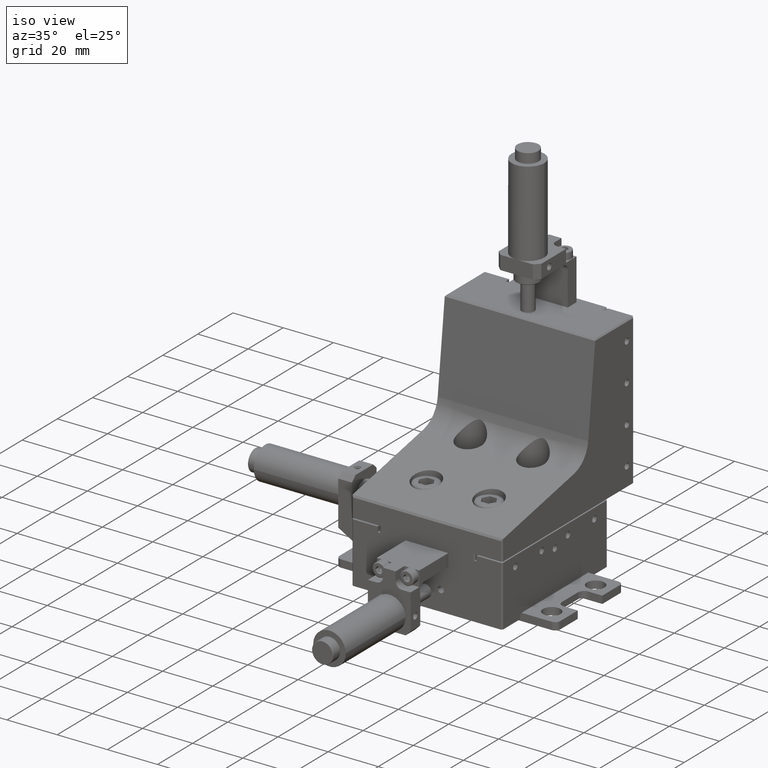
[diagram: clean part render]
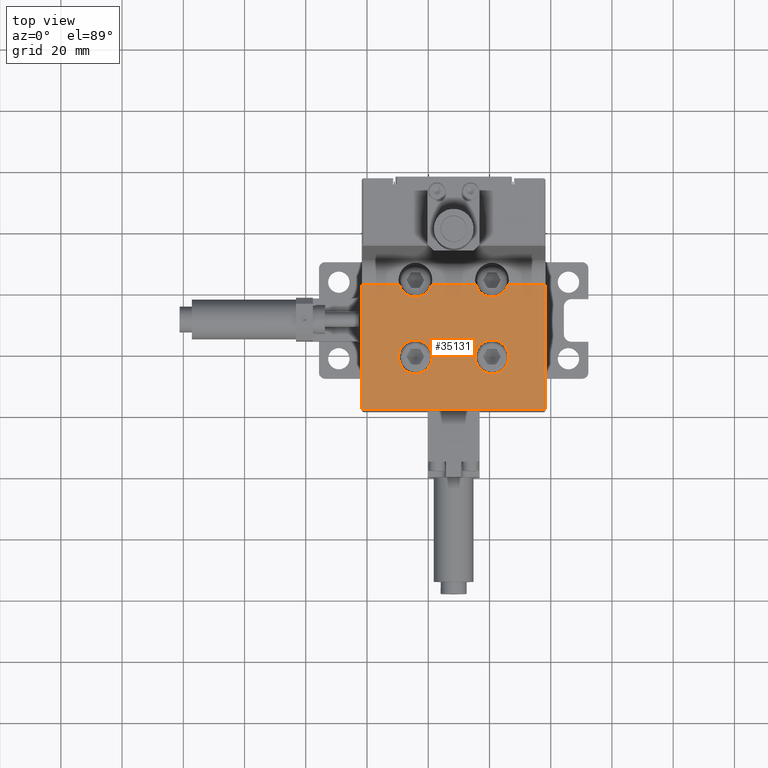
[diagram: tour spotlight — one face highlighted and labeled with its STEP entity id]
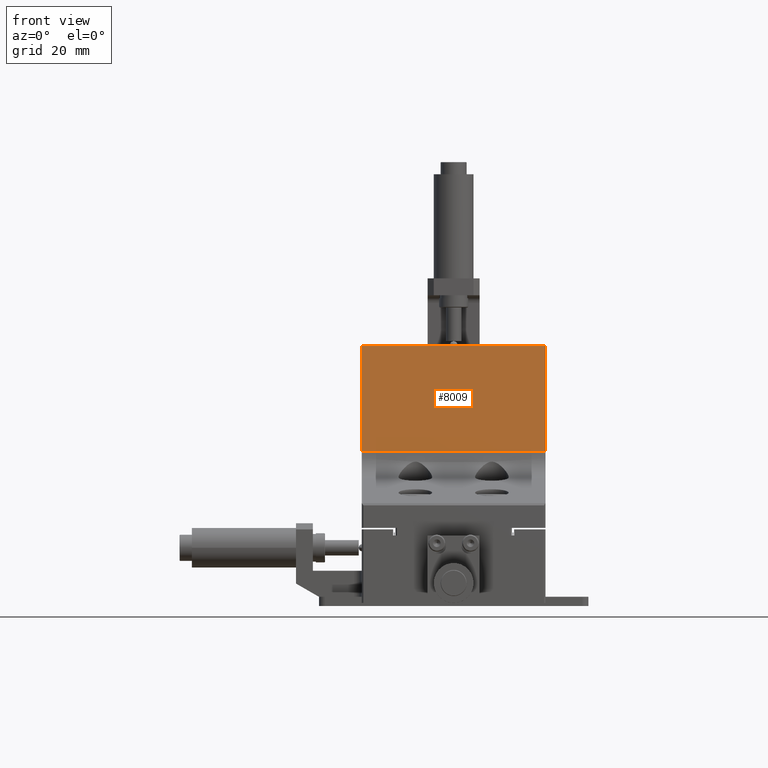
[diagram: tour spotlight — one face highlighted and labeled with its STEP entity id]
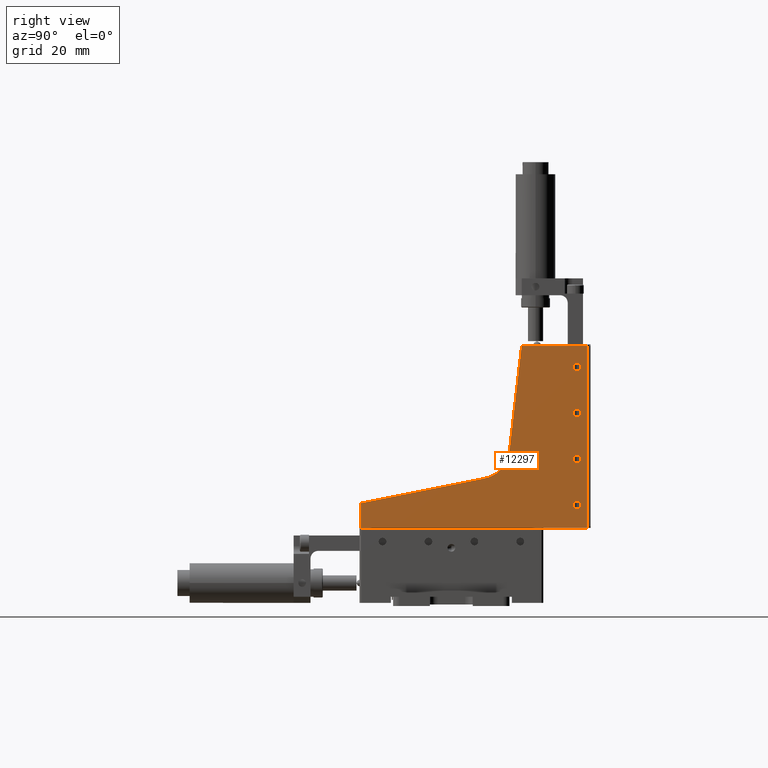
[diagram: tour spotlight — one face highlighted and labeled with its STEP entity id]
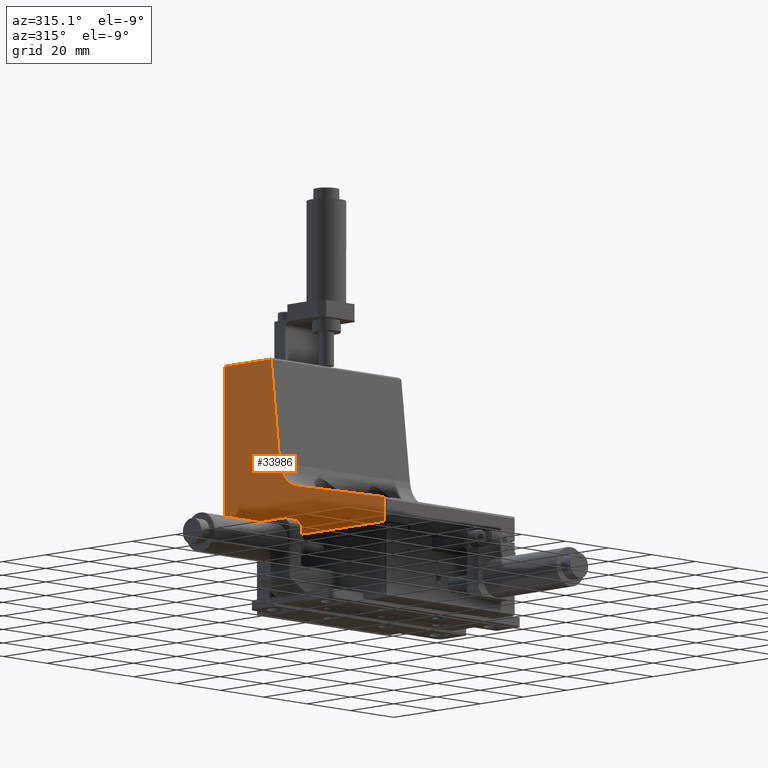
[diagram: tour spotlight — one face highlighted and labeled with its STEP entity id]
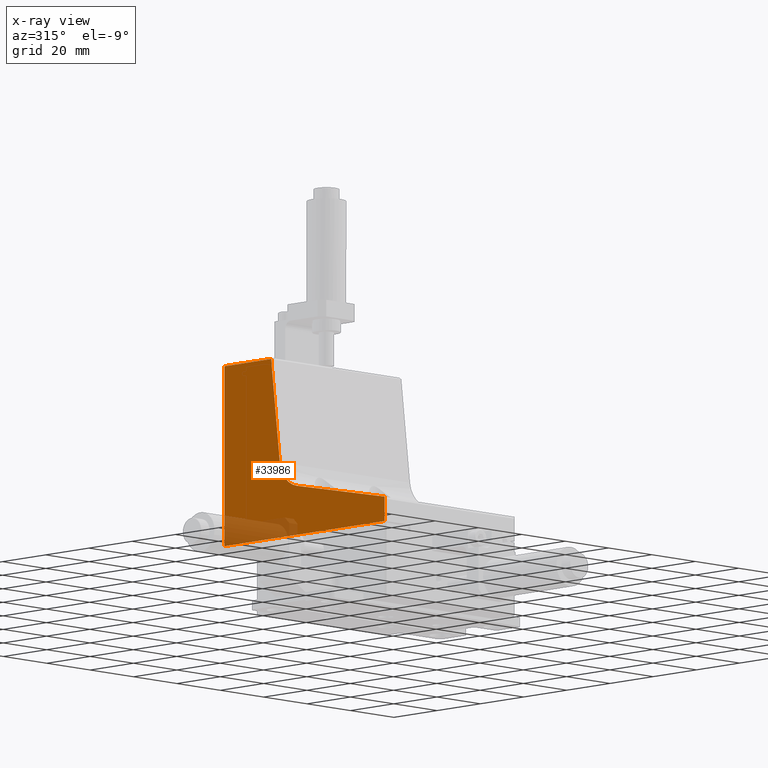
[diagram: x-ray of the same camera — body ghosted, this tour face saturated]
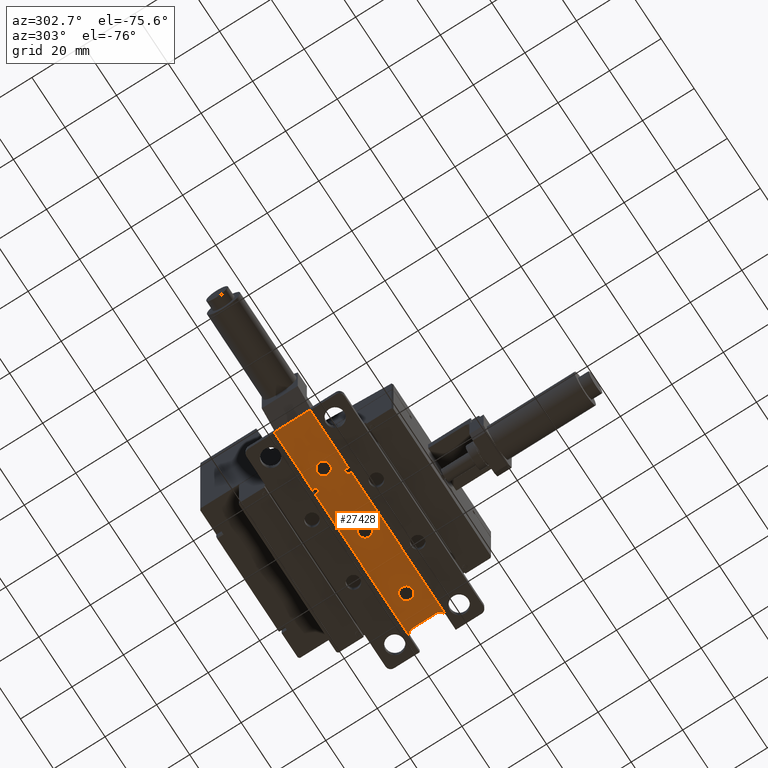
[diagram: tour spotlight — one face highlighted and labeled with its STEP entity id]
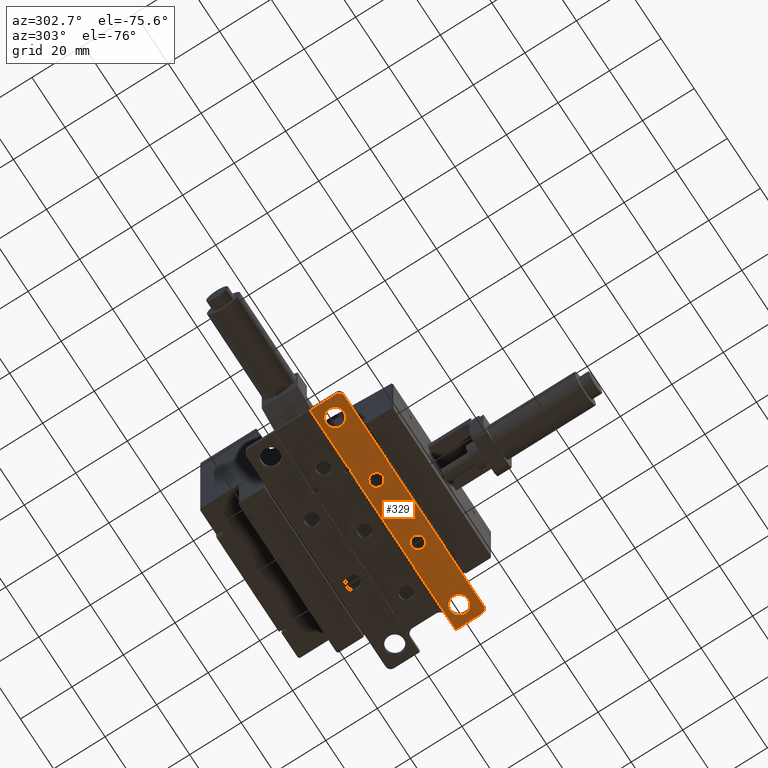
[diagram: tour spotlight — one face highlighted and labeled with its STEP entity id]
A machine part: a face-by-face anatomy tour. The part has 920 B-rep faces; the first image is the clean iso view, then the 6 largest visible faces are spotlighted one at a time (largest first), each with its STEP entity span.

Face 1 — top view, entity #35131. In plain terms, the highlighted planar face has unit normal (0, -0.1962, 0.9806).
Definition (entity closure, byte-faithful):
#405 = CARTESIAN_POINT ( 'NONE',  ( -41.69259022383123900, -97.89222728400001500, 30.46936672100000000 ) ) ;
#411 = CARTESIAN_POINT ( 'NONE',  ( 18.29769560000000100, -57.42090037796014500, 38.56556961500798100 ) ) ;
#425 = ORIENTED_EDGE ( 'NONE', *, *, #31801, .T. ) ;
#1110 = ORIENTED_EDGE ( 'NONE', *, *, #20237, .T. ) ;
#1160 = VERTEX_POINT ( 'NONE', #15030 ) ;
#1419 = CARTESIAN_POINT ( 'NONE',  ( -41.70230439999997400, -97.88251310792823300, 30.47131002126806000 ) ) ;
#1499 = EDGE_CURVE ( 'NONE', #28632, #21933, #29184, .T. ) ;
#1545 = CARTESIAN_POINT ( 'NONE',  ( -41.70230439999996000, -97.88251310785645400, 30.47131002128242000 ) ) ;
#1725 = ORIENTED_EDGE ( 'NONE', *, *, #24855, .T. ) ;
#2343 = CARTESIAN_POINT ( 'NONE',  ( -41.70230439999996000, -97.89222728400001500, 30.46936672100000000 ) ) ;
#2540 = VERTEX_POINT ( 'NONE', #1419 ) ;
#2667 = EDGE_LOOP ( 'NONE', ( #1110, #20352, #9411, #10954, #9243, #12219, #7128, #27494, #15621, #425 ) ) ;
#2808 = LINE ( 'NONE', #16229, #15846 ) ;
#2820 = CARTESIAN_POINT ( 'NONE',  ( -18.92183428747474500, -57.42090037742453700, 38.56556961492459100 ) ) ;
#3077 = CARTESIAN_POINT ( 'NONE',  ( -29.70230440000000300, -80.88251310799999800, 33.87212387442132000 ) ) ;
#3183 = VECTOR ( 'NONE', #21476, 1000.000000000000100 ) ;
#3359 = VERTEX_POINT ( 'NONE', #411 ) ;
#4071 = CARTESIAN_POINT ( 'NONE',  ( -11.70230440000000100, -57.42090037800001300, 38.56556961500000100 ) ) ;
#4907 = CARTESIAN_POINT ( 'NONE',  ( -29.70230440000000300, -80.88251310799999800, 33.87212387442132000 ) ) ;
#4923 = EDGE_CURVE ( 'NONE', #2540, #27880, #24280, .T. ) ;
#4939 = CARTESIAN_POINT ( 'NONE',  ( -27.58849410509391800, -63.92296347494075100, 37.26484571769141500 ) ) ;
#5118 = VERTEX_POINT ( 'NONE', #16334 ) ;
#5137 = DIRECTION ( 'NONE',  ( -0.0000000000000000000, -0.9805716470350422900, -0.1961612730153033700 ) ) ;
#5183 = CARTESIAN_POINT ( 'NONE',  ( 18.28798142000000100, -97.89222728400001500, 30.46936672100000000 ) ) ;
#5488 = CARTESIAN_POINT ( 'NONE',  ( 6.297695600000003500, -80.88251310799999800, 33.87212387442132000 ) ) ;
#5796 = LINE ( 'NONE', #35050, #19708 ) ;
#5925 = VERTEX_POINT ( 'NONE', #2820 ) ;
#6709 = ORIENTED_EDGE ( 'NONE', *, *, #33759, .T. ) ;
#6836 = EDGE_LOOP ( 'NONE', ( #6709, #17268 ) ) ;
#6869 = DIRECTION ( 'NONE',  ( -1.000000000000000000, 0.0000000000000000000, 0.0000000000000000000 ) ) ;
#7128 = ORIENTED_EDGE ( 'NONE', *, *, #27143, .T. ) ;
#7178 = DIRECTION ( 'NONE',  ( 0.7001367506657154600, -0.7001367602178516500, -0.1400608701918716100 ) ) ;
#7542 = CARTESIAN_POINT ( 'NONE',  ( 18.29769560000000100, -97.89222728400001500, 30.46936672100000000 ) ) ;
#7549 = CARTESIAN_POINT ( 'NONE',  ( 4.183885305093912000, -63.92296347494075100, 37.26484571769140800 ) ) ;
#7720 = CARTESIAN_POINT ( 'NONE',  ( -18.70230439999999600, -80.88251310799999800, 33.87212387442132000 ) ) ;
#8994 = CARTESIAN_POINT ( 'NONE',  ( -29.70230440000000300, -80.88251310799999800, 33.87212387442132000 ) ) ;
#9243 = ORIENTED_EDGE ( 'NONE', *, *, #23778, .T. ) ;
#9395 = VERTEX_POINT ( 'NONE', #24033 ) ;
#9411 = ORIENTED_EDGE ( 'NONE', *, *, #33048, .T. ) ;
#10253 = DIRECTION ( 'NONE',  ( -1.000000000000000000, 0.0000000000000000000, 0.0000000000000000000 ) ) ;
#10331 = CARTESIAN_POINT ( 'NONE',  ( -4.482774512525264000, -57.42090037742453000, 38.56556961492459800 ) ) ;
#10353 = DIRECTION ( 'NONE',  ( -1.000000000000000000, 0.0000000000000000000, 0.0000000000000000000 ) ) ;
#10954 = ORIENTED_EDGE ( 'NONE', *, *, #1499, .T. ) ;
#11285 = FACE_BOUND ( 'NONE', #6836, .T. ) ;
#11626 = CARTESIAN_POINT ( 'NONE',  ( 18.29769560000000100, -97.89222728400001500, 30.46936672100000000 ) ) ;
#11912 = CARTESIAN_POINT ( 'NONE',  ( -4.702304400000006300, -80.88251310799999800, 33.87212387442132000 ) ) ;
#12219 = ORIENTED_EDGE ( 'NONE', *, *, #14326, .T. ) ;
#12729 = VECTOR ( 'NONE', #10353, 1000.000000000000000 ) ;
#12815 = EDGE_CURVE ( 'NONE', #25301, #5925, #20078, .T. ) ;
#12922 = CARTESIAN_POINT ( 'NONE',  ( -11.70230440000000100, -57.42090037800001300, 38.56556961500000100 ) ) ;
#13197 = VECTOR ( 'NONE', #21368, 1000.000000000000100 ) ;
#13912 = CARTESIAN_POINT ( 'NONE',  ( -4.702304400000006300, -80.88251310799999800, 33.87212387442132000 ) ) ;
#13934 =( BOUNDED_CURVE ( )  B_SPLINE_CURVE ( 3, ( #4907, #35190, #35317, #7720 ),
 .UNSPECIFIED., .F., .F. ) 
 B_SPLINE_CURVE_WITH_KNOTS ( ( 4, 4 ),
 ( 4.712388980384691500, 7.853981633974484600 ),
 .UNSPECIFIED. ) 
 CURVE ( )  GEOMETRIC_REPRESENTATION_ITEM ( )  RATIONAL_B_SPLINE_CURVE ( ( 1.000000000000000000, 0.3333333333333333700, 0.3333333333333333700, 1.000000000000000000 ) ) 
 REPRESENTATION_ITEM ( '' )  );
#14291 = PLANE ( 'NONE',  #20047 ) ;
#14326 = EDGE_CURVE ( 'NONE', #3359, #1160, #5796, .T. ) ;
#14387 =( BOUNDED_CURVE ( )  B_SPLINE_CURVE ( 3, ( #5488, #22121, #30481, #13912 ),
 .UNSPECIFIED., .F., .F. ) 
 B_SPLINE_CURVE_WITH_KNOTS ( ( 4, 4 ),
 ( 1.570796326794898100, 4.712388980384691500 ),
 .UNSPECIFIED. ) 
 CURVE ( )  GEOMETRIC_REPRESENTATION_ITEM ( )  RATIONAL_B_SPLINE_CURVE ( ( 1.000000000000000000, 0.3333333333333333700, 0.3333333333333333700, 1.000000000000000000 ) ) 
 REPRESENTATION_ITEM ( '' )  );
#14422 = DIRECTION ( 'NONE',  ( 0.0000000000000000000, 0.9805716470350424000, 0.1961612730153033700 ) ) ;
#14506 = CARTESIAN_POINT ( 'NONE',  ( 18.29769560000000100, -97.88251311064404100, 30.47131002072477200 ) ) ;
#14687 = CARTESIAN_POINT ( 'NONE',  ( 6.297695600000004400, -69.88251310799999800, 36.07265048529448100 ) ) ;
#14810 = ORIENTED_EDGE ( 'NONE', *, *, #18813, .T. ) ;
#15030 = CARTESIAN_POINT ( 'NONE',  ( 6.078165713279777700, -57.42090037483464500, 38.56556961544269800 ) ) ;
#15621 = ORIENTED_EDGE ( 'NONE', *, *, #21248, .T. ) ;
#15846 = VECTOR ( 'NONE', #32842, 1000.000000000000000 ) ;
#15980 = CARTESIAN_POINT ( 'NONE',  ( -20.81611469884965300, -63.92296347660154500, 37.26484571735917900 ) ) ;
#16229 = CARTESIAN_POINT ( 'NONE',  ( -11.70230440000000100, -97.89222728400001500, 30.46936672100000000 ) ) ;
#16334 = CARTESIAN_POINT ( 'NONE',  ( -41.70230439999996700, -57.42090037796014500, 38.56556961500798100 ) ) ;
#16880 = CARTESIAN_POINT ( 'NONE',  ( -18.70230439999999600, -80.88251310799999800, 33.87212387442132000 ) ) ;
#17268 = ORIENTED_EDGE ( 'NONE', *, *, #20196, .T. ) ;
#17768 = FACE_OUTER_BOUND ( 'NONE', #2667, .T. ) ;
#18813 = EDGE_CURVE ( 'NONE', #9395, #33756, #14387, .T. ) ;
#19569 = CARTESIAN_POINT ( 'NONE',  ( -4.702304400000006300, -80.88251310799999800, 33.87212387442132000 ) ) ;
#19699 = CARTESIAN_POINT ( 'NONE',  ( -29.70230440000000600, -91.88251310800001200, 31.67159726354815400 ) ) ;
#19708 = VECTOR ( 'NONE', #10253, 1000.000000000000000 ) ;
#20047 = AXIS2_PLACEMENT_3D ( 'NONE', #11626, #30989, #14422 ) ;
#20078 = LINE ( 'NONE', #12922, #12729 ) ;
#20196 = EDGE_CURVE ( 'NONE', #35764, #24305, #13934, .T. ) ;
#20215 = CARTESIAN_POINT ( 'NONE',  ( -4.482774512525264000, -57.42090037742453000, 38.56556961492459800 ) ) ;
#20237 = EDGE_CURVE ( 'NONE', #5118, #2540, #31732, .T. ) ;
#20352 = ORIENTED_EDGE ( 'NONE', *, *, #4923, .T. ) ;
#21248 = EDGE_CURVE ( 'NONE', #5925, #21593, #35479, .T. ) ;
#21368 = DIRECTION ( 'NONE',  ( 0.0000000000000000000, 0.9805716470350422900, 0.1961612730153033700 ) ) ;
#21426 = LINE ( 'NONE', #7542, #13197 ) ;
#21476 = DIRECTION ( 'NONE',  ( 0.7001370968139877200, 0.7001364273889517700, 0.1400608036101319600 ) ) ;
#21593 = VERTEX_POINT ( 'NONE', #26096 ) ;
#21920 = VECTOR ( 'NONE', #6869, 1000.000000000000000 ) ;
#21933 = VERTEX_POINT ( 'NONE', #14506 ) ;
#22121 = CARTESIAN_POINT ( 'NONE',  ( 6.297695600000005300, -91.88251310800001200, 31.67159726354815400 ) ) ;
#22546 = VECTOR ( 'NONE', #7178, 1000.000000000000100 ) ;
#22822 =( BOUNDED_CURVE ( )  B_SPLINE_CURVE ( 3, ( #11912, #31249, #14687, #34031 ),
 .UNSPECIFIED., .F., .F. ) 
 B_SPLINE_CURVE_WITH_KNOTS ( ( 4, 4 ),
 ( 4.712388980384691500, 7.853981633974484600 ),
 .UNSPECIFIED. ) 
 CURVE ( )  GEOMETRIC_REPRESENTATION_ITEM ( )  RATIONAL_B_SPLINE_CURVE ( ( 1.000000000000000000, 0.3333333333333333700, 0.3333333333333333700, 1.000000000000000000 ) ) 
 REPRESENTATION_ITEM ( '' )  );
#22930 = CARTESIAN_POINT ( 'NONE',  ( 18.28798142183679300, -97.89222728400001500, 30.46936672100000000 ) ) ;
#23778 = EDGE_CURVE ( 'NONE', #21933, #3359, #21426, .T. ) ;
#24033 = CARTESIAN_POINT ( 'NONE',  ( 6.297695600000003500, -80.88251310799999800, 33.87212387442132000 ) ) ;
#24280 = LINE ( 'NONE', #1545, #22546 ) ;
#24305 = VERTEX_POINT ( 'NONE', #31179 ) ;
#24343 = CARTESIAN_POINT ( 'NONE',  ( -29.48277451327978600, -57.42090037483464500, 38.56556961544269800 ) ) ;
#24811 = EDGE_LOOP ( 'NONE', ( #14810, #1725 ) ) ;
#24855 = EDGE_CURVE ( 'NONE', #33756, #9395, #22822, .T. ) ;
#25301 = VERTEX_POINT ( 'NONE', #20215 ) ;
#26096 = CARTESIAN_POINT ( 'NONE',  ( -29.48277451327978600, -57.42090037483464500, 38.56556961544269800 ) ) ;
#26895 = CARTESIAN_POINT ( 'NONE',  ( -2.588494101150363500, -63.92296347660157400, 37.26484571735917900 ) ) ;
#27143 = EDGE_CURVE ( 'NONE', #1160, #25301, #33411, .T. ) ;
#27494 = ORIENTED_EDGE ( 'NONE', *, *, #12815, .T. ) ;
#27880 = VERTEX_POINT ( 'NONE', #405 ) ;
#28632 = VERTEX_POINT ( 'NONE', #22930 ) ;
#29184 = LINE ( 'NONE', #5183, #3183 ) ;
#29257 = LINE ( 'NONE', #4071, #21920 ) ;
#30481 = CARTESIAN_POINT ( 'NONE',  ( -4.702304400000005400, -91.88251310800001200, 31.67159726354815400 ) ) ;
#30860 = VECTOR ( 'NONE', #5137, 1000.000000000000100 ) ;
#30989 = DIRECTION ( 'NONE',  ( 0.0000000000000000000, -0.1961612730153033700, 0.9805716470350424000 ) ) ;
#31179 = CARTESIAN_POINT ( 'NONE',  ( -18.70230439999999600, -80.88251310799999800, 33.87212387442132000 ) ) ;
#31249 = CARTESIAN_POINT ( 'NONE',  ( -4.702304400000008000, -69.88251310799999800, 36.07265048529448100 ) ) ;
#31732 = LINE ( 'NONE', #2343, #30860 ) ;
#31801 = EDGE_CURVE ( 'NONE', #21593, #5118, #29257, .T. ) ;
#32518 = FACE_BOUND ( 'NONE', #24811, .T. ) ;
#32606 = CARTESIAN_POINT ( 'NONE',  ( -18.92183428747474500, -57.42090037742453700, 38.56556961492459100 ) ) ;
#32842 = DIRECTION ( 'NONE',  ( 1.000000000000000000, -0.0000000000000000000, -0.0000000000000000000 ) ) ;
#33048 = EDGE_CURVE ( 'NONE', #27880, #28632, #2808, .T. ) ;
#33079 =( BOUNDED_CURVE ( )  B_SPLINE_CURVE ( 3, ( #16880, #33495, #19699, #3077 ),
 .UNSPECIFIED., .F., .F. ) 
 B_SPLINE_CURVE_WITH_KNOTS ( ( 4, 4 ),
 ( 1.570796326794898100, 4.712388980384691500 ),
 .UNSPECIFIED. ) 
 CURVE ( )  GEOMETRIC_REPRESENTATION_ITEM ( )  RATIONAL_B_SPLINE_CURVE ( ( 1.000000000000000000, 0.3333333333333333700, 0.3333333333333333700, 1.000000000000000000 ) ) 
 REPRESENTATION_ITEM ( '' )  );
#33411 =( BOUNDED_CURVE ( )  B_SPLINE_CURVE ( 3, ( #34652, #7549, #26895, #10331 ),
 .UNSPECIFIED., .F., .F. ) 
 B_SPLINE_CURVE_WITH_KNOTS ( ( 4, 4 ),
 ( 1.854285007721769200, 4.428900298967356300 ),
 .UNSPECIFIED. ) 
 CURVE ( )  GEOMETRIC_REPRESENTATION_ITEM ( )  RATIONAL_B_SPLINE_CURVE ( ( 1.000000000000000000, 0.5198045173531352600, 0.5198045173531352600, 1.000000000000000000 ) ) 
 REPRESENTATION_ITEM ( '' )  );
#33495 = CARTESIAN_POINT ( 'NONE',  ( -18.70230439999999900, -91.88251310800001200, 31.67159726354815400 ) ) ;
#33756 = VERTEX_POINT ( 'NONE', #19569 ) ;
#33759 = EDGE_CURVE ( 'NONE', #24305, #35764, #33079, .T. ) ;
#34031 = CARTESIAN_POINT ( 'NONE',  ( 6.297695600000003500, -80.88251310799999800, 33.87212387442132000 ) ) ;
#34652 = CARTESIAN_POINT ( 'NONE',  ( 6.078165713279777700, -57.42090037483464500, 38.56556961544269800 ) ) ;
#35050 = CARTESIAN_POINT ( 'NONE',  ( -11.70230440000000100, -57.42090037800001300, 38.56556961500000100 ) ) ;
#35131 = ADVANCED_FACE ( 'NONE', ( #32518, #11285, #17768 ), #14291, .T. ) ;
#35190 = CARTESIAN_POINT ( 'NONE',  ( -29.70230440000000600, -69.88251310799999800, 36.07265048529448100 ) ) ;
#35317 = CARTESIAN_POINT ( 'NONE',  ( -18.70230439999999900, -69.88251310799999800, 36.07265048529448100 ) ) ;
#35479 =( BOUNDED_CURVE ( )  B_SPLINE_CURVE ( 3, ( #32606, #15980, #4939, #24343 ),
 .UNSPECIFIED., .F., .F. ) 
 B_SPLINE_CURVE_WITH_KNOTS ( ( 4, 4 ),
 ( 1.854285008212235300, 4.428900299457819900 ),
 .UNSPECIFIED. ) 
 CURVE ( )  GEOMETRIC_REPRESENTATION_ITEM ( )  RATIONAL_B_SPLINE_CURVE ( ( 1.000000000000000000, 0.5198045173531361500, 0.5198045173531361500, 1.000000000000000000 ) ) 
 REPRESENTATION_ITEM ( '' )  );
#35764 = VERTEX_POINT ( 'NONE', #8994 ) ;

Face 2 — front view, entity #8009. In plain terms, the highlighted planar face has unit normal (0, -0.9934, 0.1149).
Definition (entity closure, byte-faithful):
#1100 = CARTESIAN_POINT ( 'NONE',  ( -11.70230440000000100, -49.44876452199999800, 47.22209549100000500 ) ) ;
#2043 = EDGE_CURVE ( 'NONE', #20402, #19397, #4871, .T. ) ;
#4499 = DIRECTION ( 'NONE',  ( 0.0000000000000000000, 0.1149190594612706900, 0.9933748586372300700 ) ) ;
#4871 = LINE ( 'NONE', #14460, #13164 ) ;
#5271 = VECTOR ( 'NONE', #35588, 1000.000000000000000 ) ;
#5744 = ORIENTED_EDGE ( 'NONE', *, *, #6729, .T. ) ;
#6159 = LINE ( 'NONE', #27226, #5271 ) ;
#6514 = ORIENTED_EDGE ( 'NONE', *, *, #29286, .F. ) ;
#6729 = EDGE_CURVE ( 'NONE', #28599, #7688, #29470, .T. ) ;
#6975 = EDGE_LOOP ( 'NONE', ( #13371, #13967, #5744, #6514 ) ) ;
#7688 = VERTEX_POINT ( 'NONE', #28586 ) ;
#8009 = ADVANCED_FACE ( 'NONE', ( #30603 ), #24570, .T. ) ;
#8099 = DIRECTION ( 'NONE',  ( 0.0000000000000000000, -0.9933748586372301800, 0.1149190594612707100 ) ) ;
#11249 = VECTOR ( 'NONE', #23209, 1000.000000000000000 ) ;
#13164 = VECTOR ( 'NONE', #13619, 1000.000000000000100 ) ;
#13371 = ORIENTED_EDGE ( 'NONE', *, *, #2043, .T. ) ;
#13619 = DIRECTION ( 'NONE',  ( -0.0000000000000000000, -0.1149190594612706900, -0.9933748586372300700 ) ) ;
#13967 = ORIENTED_EDGE ( 'NONE', *, *, #21587, .T. ) ;
#14460 = CARTESIAN_POINT ( 'NONE',  ( -41.70230440000003100, -49.44876452199999800, 47.22209549100000500 ) ) ;
#19397 = VERTEX_POINT ( 'NONE', #35970 ) ;
#20402 = VERTEX_POINT ( 'NONE', #27911 ) ;
#21587 = EDGE_CURVE ( 'NONE', #19397, #28599, #25933, .T. ) ;
#23209 = DIRECTION ( 'NONE',  ( 1.000000000000000000, -0.0000000000000000000, -0.0000000000000000000 ) ) ;
#24570 = PLANE ( 'NONE',  #35634 ) ;
#24692 = CARTESIAN_POINT ( 'NONE',  ( 18.29769560000000100, -49.44876452199999800, 47.22209549100000500 ) ) ;
#25933 = LINE ( 'NONE', #1100, #11249 ) ;
#27226 = CARTESIAN_POINT ( 'NONE',  ( -11.70230440000000100, -45.44792280699999800, 81.80587638599998000 ) ) ;
#27460 = DIRECTION ( 'NONE',  ( 0.0000000000000000000, 0.1149190594612706900, 0.9933748586372300700 ) ) ;
#27911 = CARTESIAN_POINT ( 'NONE',  ( -41.70230440000001000, -45.44792280699999100, 81.80587638599999400 ) ) ;
#28586 = CARTESIAN_POINT ( 'NONE',  ( 18.29769559999999700, -45.44792280699999100, 81.80587638599999400 ) ) ;
#28599 = VERTEX_POINT ( 'NONE', #33951 ) ;
#29286 = EDGE_CURVE ( 'NONE', #20402, #7688, #6159, .T. ) ;
#29470 = LINE ( 'NONE', #32013, #35952 ) ;
#30603 = FACE_OUTER_BOUND ( 'NONE', #6975, .T. ) ;
#32013 = CARTESIAN_POINT ( 'NONE',  ( 18.29769560000000100, -49.44876452199999800, 47.22209549100000500 ) ) ;
#33951 = CARTESIAN_POINT ( 'NONE',  ( 18.29769559999999700, -49.44876452203251200, 47.22209549071893500 ) ) ;
#35588 = DIRECTION ( 'NONE',  ( 1.000000000000000000, 0.0000000000000000000, 0.0000000000000000000 ) ) ;
#35634 = AXIS2_PLACEMENT_3D ( 'NONE', #24692, #8099, #27460 ) ;
#35952 = VECTOR ( 'NONE', #4499, 1000.000000000000100 ) ;
#35970 = CARTESIAN_POINT ( 'NONE',  ( -41.70230440000000300, -49.44876452203251200, 47.22209549071893500 ) ) ;

Face 3 — right view, entity #12297. In plain terms, the highlighted planar face has unit normal (-1, 0, 0).
Definition (entity closure, byte-faithful):
#72 = DIRECTION ( 'NONE',  ( 0.0000000000000000000, -6.938893903907227400E-016, 1.000000000000000000 ) ) ;
#219 = VECTOR ( 'NONE', #27095, 1000.000000000000000 ) ;
#294 = AXIS2_PLACEMENT_3D ( 'NONE', #27691, #11156, #30511 ) ;
#411 = CARTESIAN_POINT ( 'NONE',  ( 18.29769560000000100, -57.42090037796014500, 38.56556961500798100 ) ) ;
#629 = DIRECTION ( 'NONE',  ( 0.0000000000000000000, 1.000000000000000000, 0.0000000000000000000 ) ) ;
#1016 = ORIENTED_EDGE ( 'NONE', *, *, #13478, .F. ) ;
#1032 = FACE_BOUND ( 'NONE', #30108, .T. ) ;
#1462 = EDGE_LOOP ( 'NONE', ( #32666, #22869 ) ) ;
#2111 = EDGE_LOOP ( 'NONE', ( #30456, #29352, #4470, #27459, #23060, #5159, #26340, #26555 ) ) ;
#2324 = CARTESIAN_POINT ( 'NONE',  ( 18.29769560000000100, -97.88251310799999800, 22.37128608500000100 ) ) ;
#2522 = CARTESIAN_POINT ( 'NONE',  ( 18.29769560000000100, -26.13251310799999800, 29.87128608500000100 ) ) ;
#2533 = LINE ( 'NONE', #15496, #9066 ) ;
#3359 = VERTEX_POINT ( 'NONE', #411 ) ;
#4228 = CARTESIAN_POINT ( 'NONE',  ( 18.29769560000000100, -27.38251310799999400, 29.87128608500000100 ) ) ;
#4311 = EDGE_CURVE ( 'NONE', #22261, #21672, #16540, .T. ) ;
#4438 = AXIS2_PLACEMENT_3D ( 'NONE', #33837, #17254, #629 ) ;
#4470 = ORIENTED_EDGE ( 'NONE', *, *, #33130, .F. ) ;
#4478 = DIRECTION ( 'NONE',  ( 0.0000000000000000000, 0.0000000000000000000, 1.000000000000000000 ) ) ;
#4499 = DIRECTION ( 'NONE',  ( 0.0000000000000000000, 0.1149190594612706900, 0.9933748586372300700 ) ) ;
#5159 = ORIENTED_EDGE ( 'NONE', *, *, #30961, .F. ) ;
#5919 = CARTESIAN_POINT ( 'NONE',  ( 18.29769560000000100, -27.38251310799999400, 59.87128608499998700 ) ) ;
#5947 = VECTOR ( 'NONE', #33179, 1000.000000000000000 ) ;
#5969 = VERTEX_POINT ( 'NONE', #30595 ) ;
#6729 = EDGE_CURVE ( 'NONE', #28599, #7688, #29470, .T. ) ;
#7041 = DIRECTION ( 'NONE',  ( 0.0000000000000000000, 1.000000000000000000, 0.0000000000000000000 ) ) ;
#7542 = CARTESIAN_POINT ( 'NONE',  ( 18.29769560000000100, -97.89222728400001500, 30.46936672100000000 ) ) ;
#7688 = VERTEX_POINT ( 'NONE', #28586 ) ;
#8006 = EDGE_LOOP ( 'NONE', ( #25991, #22101 ) ) ;
#8396 = EDGE_CURVE ( 'NONE', #7688, #26174, #22302, .T. ) ;
#8453 = FACE_BOUND ( 'NONE', #1462, .T. ) ;
#8485 = VERTEX_POINT ( 'NONE', #28206 ) ;
#8739 = DIRECTION ( 'NONE',  ( 0.0000000000000000000, 1.000000000000000000, 0.0000000000000000000 ) ) ;
#9066 = VECTOR ( 'NONE', #4478, 1000.000000000000000 ) ;
#9324 = FACE_BOUND ( 'NONE', #24518, .T. ) ;
#10064 = VERTEX_POINT ( 'NONE', #35277 ) ;
#10254 = CIRCLE ( 'NONE', #27319, 1.250000000000001100 ) ;
#10665 = CARTESIAN_POINT ( 'NONE',  ( 18.29769560000000100, -97.88251310799999800, 22.37128608500000100 ) ) ;
#10688 = CARTESIAN_POINT ( 'NONE',  ( 18.29769560000000100, -45.16521795750000500, 82.08858123550000100 ) ) ;
#10697 = CIRCLE ( 'NONE', #11891, 1.249999999999994200 ) ;
#11075 = EDGE_CURVE ( 'NONE', #21672, #22261, #34643, .T. ) ;
#11121 = EDGE_CURVE ( 'NONE', #11788, #21933, #2533, .T. ) ;
#11156 = DIRECTION ( 'NONE',  ( 1.000000000000000000, 6.938893903907252000E-016, -0.0000000000000000000 ) ) ;
#11761 = VERTEX_POINT ( 'NONE', #21636 ) ;
#11788 = VERTEX_POINT ( 'NONE', #2324 ) ;
#11891 = AXIS2_PLACEMENT_3D ( 'NONE', #28884, #12336, #31699 ) ;
#12297 = ADVANCED_FACE ( 'NONE', ( #23193, #8453, #9324, #1032, #29703 ), #27081, .F. ) ;
#12336 = DIRECTION ( 'NONE',  ( 1.000000000000000000, 6.938893903907252000E-016, -0.0000000000000000000 ) ) ;
#12400 = DIRECTION ( 'NONE',  ( 1.000000000000000000, 6.938893903907212600E-016, -0.0000000000000000000 ) ) ;
#12706 = ORIENTED_EDGE ( 'NONE', *, *, #32797, .F. ) ;
#13197 = VECTOR ( 'NONE', #21368, 1000.000000000000100 ) ;
#13446 = DIRECTION ( 'NONE',  ( 0.0000000000000000000, 0.0000000000000000000, 1.000000000000000000 ) ) ;
#13478 = EDGE_CURVE ( 'NONE', #16957, #30329, #34543, .T. ) ;
#13809 = CARTESIAN_POINT ( 'NONE',  ( 18.29769560000000100, -23.88251310799999800, 52.12128608500000100 ) ) ;
#13836 = EDGE_CURVE ( 'NONE', #23685, #26174, #22382, .T. ) ;
#14261 = DIRECTION ( 'NONE',  ( 1.000000000000000000, 6.938893903907212600E-016, -0.0000000000000000000 ) ) ;
#14506 = CARTESIAN_POINT ( 'NONE',  ( 18.29769560000000100, -97.88251311064404100, 30.47131002072477200 ) ) ;
#15496 = CARTESIAN_POINT ( 'NONE',  ( 18.29769560000000100, -97.88251310799999800, 52.12128608500000100 ) ) ;
#15517 = LINE ( 'NONE', #13809, #30247 ) ;
#15725 = CARTESIAN_POINT ( 'NONE',  ( 18.29769560000000100, -26.13251310800000100, 59.87128608499998700 ) ) ;
#15790 = VECTOR ( 'NONE', #19033, 1000.000000000000000 ) ;
#16133 = CARTESIAN_POINT ( 'NONE',  ( 18.29769560000000100, -27.38251310799999400, 29.87128608500000100 ) ) ;
#16540 = CIRCLE ( 'NONE', #32957, 1.249999999999997600 ) ;
#16678 = DIRECTION ( 'NONE',  ( 1.000000000000000000, -0.0000000000000000000, -0.0000000000000000000 ) ) ;
#16957 = VERTEX_POINT ( 'NONE', #15725 ) ;
#17013 = CIRCLE ( 'NONE', #294, 1.249999999999994200 ) ;
#17254 = DIRECTION ( 'NONE',  ( 1.000000000000000000, 6.938893903907252000E-016, -0.0000000000000000000 ) ) ;
#18605 = ORIENTED_EDGE ( 'NONE', *, *, #19930, .F. ) ;
#18755 = CARTESIAN_POINT ( 'NONE',  ( 18.29769560000000100, -28.63251310799999400, 29.87128608500000100 ) ) ;
#18933 = AXIS2_PLACEMENT_3D ( 'NONE', #30833, #14261, #33604 ) ;
#18943 = DIRECTION ( 'NONE',  ( 0.0000000000000000000, 1.000000000000000000, 0.0000000000000000000 ) ) ;
#19033 = DIRECTION ( 'NONE',  ( 0.0000000000000000000, 0.7071067811865258100, 0.7071067811865692200 ) ) ;
#19930 = EDGE_CURVE ( 'NONE', #30329, #16957, #17013, .T. ) ;
#21368 = DIRECTION ( 'NONE',  ( 0.0000000000000000000, 0.9805716470350422900, 0.1961612730153033700 ) ) ;
#21398 = AXIS2_PLACEMENT_3D ( 'NONE', #4228, #23616, #7041 ) ;
#21426 = LINE ( 'NONE', #7542, #13197 ) ;
#21636 = CARTESIAN_POINT ( 'NONE',  ( 18.29769560000000100, -26.13251310799999400, 74.87128608500002300 ) ) ;
#21672 = VERTEX_POINT ( 'NONE', #18755 ) ;
#21933 = VERTEX_POINT ( 'NONE', #14506 ) ;
#22101 = ORIENTED_EDGE ( 'NONE', *, *, #11075, .F. ) ;
#22152 = ORIENTED_EDGE ( 'NONE', *, *, #25832, .F. ) ;
#22261 = VERTEX_POINT ( 'NONE', #2522 ) ;
#22302 = LINE ( 'NONE', #10688, #15790 ) ;
#22382 = LINE ( 'NONE', #32713, #219 ) ;
#22869 = ORIENTED_EDGE ( 'NONE', *, *, #33833, .F. ) ;
#23060 = ORIENTED_EDGE ( 'NONE', *, *, #11121, .F. ) ;
#23159 = EDGE_CURVE ( 'NONE', #8485, #28451, #10697, .T. ) ;
#23193 = FACE_BOUND ( 'NONE', #8006, .T. ) ;
#23233 = AXIS2_PLACEMENT_3D ( 'NONE', #5919, #25328, #8739 ) ;
#23616 = DIRECTION ( 'NONE',  ( 1.000000000000000000, 6.938893903907242200E-016, -0.0000000000000000000 ) ) ;
#23685 = VERTEX_POINT ( 'NONE', #32025 ) ;
#23778 = EDGE_CURVE ( 'NONE', #21933, #3359, #21426, .T. ) ;
#24518 = EDGE_LOOP ( 'NONE', ( #1016, #18605 ) ) ;
#24886 = CARTESIAN_POINT ( 'NONE',  ( 18.29769560000000100, -28.63251310799999100, 44.87128608499998700 ) ) ;
#25328 = DIRECTION ( 'NONE',  ( 1.000000000000000000, 6.938893903907252000E-016, -0.0000000000000000000 ) ) ;
#25832 = EDGE_CURVE ( 'NONE', #10064, #11761, #32077, .T. ) ;
#25991 = ORIENTED_EDGE ( 'NONE', *, *, #4311, .F. ) ;
#26174 = VERTEX_POINT ( 'NONE', #26902 ) ;
#26340 = ORIENTED_EDGE ( 'NONE', *, *, #26419, .F. ) ;
#26419 = EDGE_CURVE ( 'NONE', #23685, #5969, #15517, .T. ) ;
#26555 = ORIENTED_EDGE ( 'NONE', *, *, #13836, .T. ) ;
#26902 = CARTESIAN_POINT ( 'NONE',  ( 18.29769560000000100, -45.38251310789480200, 81.87128608510518300 ) ) ;
#27081 = PLANE ( 'NONE',  #30032 ) ;
#27095 = DIRECTION ( 'NONE',  ( -0.0000000000000000000, -1.000000000000000000, -0.0000000000000000000 ) ) ;
#27319 = AXIS2_PLACEMENT_3D ( 'NONE', #28935, #12400, #31767 ) ;
#27459 = ORIENTED_EDGE ( 'NONE', *, *, #23778, .F. ) ;
#27691 = CARTESIAN_POINT ( 'NONE',  ( 18.29769560000000100, -27.38251310799999400, 59.87128608499998700 ) ) ;
#27700 = CARTESIAN_POINT ( 'NONE',  ( 18.29769560000000100, -60.88251310799999800, 22.37128608500000100 ) ) ;
#28064 = LINE ( 'NONE', #27700, #5947 ) ;
#28206 = CARTESIAN_POINT ( 'NONE',  ( 18.29769560000000100, -26.13251310800000100, 44.87128608499998700 ) ) ;
#28451 = VERTEX_POINT ( 'NONE', #24886 ) ;
#28586 = CARTESIAN_POINT ( 'NONE',  ( 18.29769559999999700, -45.44792280699999100, 81.80587638599999400 ) ) ;
#28599 = VERTEX_POINT ( 'NONE', #33951 ) ;
#28884 = CARTESIAN_POINT ( 'NONE',  ( 18.29769560000000100, -27.38251310799999400, 44.87128608499998700 ) ) ;
#28935 = CARTESIAN_POINT ( 'NONE',  ( 18.29769560000000100, -27.38251310799999400, 74.87128608500002300 ) ) ;
#29108 = CARTESIAN_POINT ( 'NONE',  ( 18.29769560000000100, -28.63251310799999100, 59.87128608499998700 ) ) ;
#29352 = ORIENTED_EDGE ( 'NONE', *, *, #6729, .F. ) ;
#29470 = LINE ( 'NONE', #32013, #35952 ) ;
#29703 = FACE_OUTER_BOUND ( 'NONE', #2111, .T. ) ;
#30017 = DIRECTION ( 'NONE',  ( -1.000000000000000000, 0.0000000000000000000, 0.0000000000000000000 ) ) ;
#30032 = AXIS2_PLACEMENT_3D ( 'NONE', #10665, #30017, #13446 ) ;
#30108 = EDGE_LOOP ( 'NONE', ( #12706, #22152 ) ) ;
#30247 = VECTOR ( 'NONE', #33153, 1000.000000000000000 ) ;
#30329 = VERTEX_POINT ( 'NONE', #29108 ) ;
#30456 = ORIENTED_EDGE ( 'NONE', *, *, #8396, .F. ) ;
#30484 = CIRCLE ( 'NONE', #4438, 1.249999999999994200 ) ;
#30511 = DIRECTION ( 'NONE',  ( 0.0000000000000000000, 1.000000000000000000, 0.0000000000000000000 ) ) ;
#30595 = CARTESIAN_POINT ( 'NONE',  ( 18.29769560000000400, -23.88251311424999900, 22.37128608499999800 ) ) ;
#30833 = CARTESIAN_POINT ( 'NONE',  ( 18.29769560000000100, -27.38251310799999400, 74.87128608500002300 ) ) ;
#30961 = EDGE_CURVE ( 'NONE', #5969, #11788, #28064, .T. ) ;
#31535 = AXIS2_PLACEMENT_3D ( 'NONE', #33289, #16678, #72 ) ;
#31699 = DIRECTION ( 'NONE',  ( 0.0000000000000000000, 1.000000000000000000, 0.0000000000000000000 ) ) ;
#31767 = DIRECTION ( 'NONE',  ( 0.0000000000000000000, 1.000000000000000000, 0.0000000000000000000 ) ) ;
#32013 = CARTESIAN_POINT ( 'NONE',  ( 18.29769560000000100, -49.44876452199999800, 47.22209549100000500 ) ) ;
#32025 = CARTESIAN_POINT ( 'NONE',  ( 18.29769560000000100, -23.88251311186000000, 81.87128608500000800 ) ) ;
#32077 = CIRCLE ( 'NONE', #18933, 1.250000000000001100 ) ;
#32666 = ORIENTED_EDGE ( 'NONE', *, *, #23159, .F. ) ;
#32713 = CARTESIAN_POINT ( 'NONE',  ( 18.29769560000000100, -34.38251310799999800, 81.87128608500000800 ) ) ;
#32760 = CIRCLE ( 'NONE', #31535, 10.00000000000000200 ) ;
#32797 = EDGE_CURVE ( 'NONE', #11761, #10064, #10254, .T. ) ;
#32957 = AXIS2_PLACEMENT_3D ( 'NONE', #16133, #35490, #18943 ) ;
#33130 = EDGE_CURVE ( 'NONE', #3359, #28599, #32760, .T. ) ;
#33153 = DIRECTION ( 'NONE',  ( -0.0000000000000000000, -0.0000000000000000000, -1.000000000000000000 ) ) ;
#33179 = DIRECTION ( 'NONE',  ( 0.0000000000000000000, -1.000000000000000000, 0.0000000000000000000 ) ) ;
#33289 = CARTESIAN_POINT ( 'NONE',  ( 18.29769559999999700, -59.38251310800000500, 48.37128608499998700 ) ) ;
#33604 = DIRECTION ( 'NONE',  ( 0.0000000000000000000, 1.000000000000000000, 0.0000000000000000000 ) ) ;
#33833 = EDGE_CURVE ( 'NONE', #28451, #8485, #30484, .T. ) ;
#33837 = CARTESIAN_POINT ( 'NONE',  ( 18.29769560000000100, -27.38251310799999400, 44.87128608499998700 ) ) ;
#33951 = CARTESIAN_POINT ( 'NONE',  ( 18.29769559999999700, -49.44876452203251200, 47.22209549071893500 ) ) ;
#34543 = CIRCLE ( 'NONE', #23233, 1.249999999999994200 ) ;
#34643 = CIRCLE ( 'NONE', #21398, 1.249999999999997600 ) ;
#35277 = CARTESIAN_POINT ( 'NONE',  ( 18.29769560000000100, -28.63251310799999800, 74.87128608500002300 ) ) ;
#35490 = DIRECTION ( 'NONE',  ( 1.000000000000000000, 6.938893903907242200E-016, -0.0000000000000000000 ) ) ;
#35952 = VECTOR ( 'NONE', #4499, 1000.000000000000100 ) ;

Face 4 — auxiliary view, entity #33986. An x-ray twin of the same camera follows (body ghosted, this face saturated) — the face is partly hidden behind the body. In plain terms, the highlighted planar face has unit normal (1, -0, 0).
Definition (entity closure, byte-faithful):
#625 = CARTESIAN_POINT ( 'NONE',  ( -41.70230440000000300, -23.88251310799999800, 52.12128608500000100 ) ) ;
#1419 = CARTESIAN_POINT ( 'NONE',  ( -41.70230439999997400, -97.88251310792823300, 30.47131002126806000 ) ) ;
#2043 = EDGE_CURVE ( 'NONE', #20402, #19397, #4871, .T. ) ;
#2275 = CARTESIAN_POINT ( 'NONE',  ( -41.70230440000000300, -97.88251310175000700, 22.37128608500000100 ) ) ;
#2343 = CARTESIAN_POINT ( 'NONE',  ( -41.70230439999996000, -97.89222728400001500, 30.46936672100000000 ) ) ;
#2540 = VERTEX_POINT ( 'NONE', #1419 ) ;
#3558 = DIRECTION ( 'NONE',  ( -0.0000000000000000000, -0.7071067811865258100, -0.7071067811865692200 ) ) ;
#3805 = PLANE ( 'NONE',  #24868 ) ;
#4413 = VERTEX_POINT ( 'NONE', #30164 ) ;
#4473 = VERTEX_POINT ( 'NONE', #22186 ) ;
#4828 = DIRECTION ( 'NONE',  ( -1.000000000000000000, 0.0000000000000000000, 0.0000000000000000000 ) ) ;
#4871 = LINE ( 'NONE', #14460, #13164 ) ;
#5118 = VERTEX_POINT ( 'NONE', #16334 ) ;
#5137 = DIRECTION ( 'NONE',  ( -0.0000000000000000000, -0.9805716470350422900, -0.1961612730153033700 ) ) ;
#6770 = EDGE_CURVE ( 'NONE', #19397, #5118, #11297, .T. ) ;
#7255 = VECTOR ( 'NONE', #34148, 1000.000000000000000 ) ;
#7322 = CARTESIAN_POINT ( 'NONE',  ( -41.70230440000000300, -34.38251310799999800, 81.87128608500000800 ) ) ;
#7693 = EDGE_CURVE ( 'NONE', #18175, #10507, #35824, .T. ) ;
#9133 = LINE ( 'NONE', #625, #30373 ) ;
#10507 = VERTEX_POINT ( 'NONE', #26394 ) ;
#11059 = LINE ( 'NONE', #24180, #18430 ) ;
#11297 = CIRCLE ( 'NONE', #28159, 10.00000000000000200 ) ;
#13164 = VECTOR ( 'NONE', #13619, 1000.000000000000100 ) ;
#13619 = DIRECTION ( 'NONE',  ( -0.0000000000000000000, -0.1149190594612706900, -0.9933748586372300700 ) ) ;
#14064 = ORIENTED_EDGE ( 'NONE', *, *, #23537, .F. ) ;
#14098 = VECTOR ( 'NONE', #3558, 1000.000000000000000 ) ;
#14460 = CARTESIAN_POINT ( 'NONE',  ( -41.70230440000003100, -49.44876452199999800, 47.22209549100000500 ) ) ;
#14812 = CARTESIAN_POINT ( 'NONE',  ( -41.70230440000000300, -60.88251310799999800, 22.37128608500000100 ) ) ;
#14984 = CARTESIAN_POINT ( 'NONE',  ( -41.70230440000000300, -97.88251310799999800, 81.87128608500000800 ) ) ;
#15875 = EDGE_CURVE ( 'NONE', #10507, #4413, #9133, .T. ) ;
#16068 = ORIENTED_EDGE ( 'NONE', *, *, #33494, .F. ) ;
#16334 = CARTESIAN_POINT ( 'NONE',  ( -41.70230439999996700, -57.42090037796014500, 38.56556961500798100 ) ) ;
#17746 = DIRECTION ( 'NONE',  ( 0.0000000000000000000, 0.0000000000000000000, -1.000000000000000000 ) ) ;
#18175 = VERTEX_POINT ( 'NONE', #2275 ) ;
#18430 = VECTOR ( 'NONE', #35187, 1000.000000000000000 ) ;
#19397 = VERTEX_POINT ( 'NONE', #35970 ) ;
#20237 = EDGE_CURVE ( 'NONE', #5118, #2540, #31732, .T. ) ;
#20402 = VERTEX_POINT ( 'NONE', #27911 ) ;
#21471 = CARTESIAN_POINT ( 'NONE',  ( -41.70230439999997400, -59.38251310800000500, 48.37128608499998700 ) ) ;
#22186 = CARTESIAN_POINT ( 'NONE',  ( -41.70230440000000300, -45.38251310663598300, 81.87128608636399500 ) ) ;
#23050 = CARTESIAN_POINT ( 'NONE',  ( -41.70230440000000300, -45.16521795750000500, 82.08858123550000100 ) ) ;
#23537 = EDGE_CURVE ( 'NONE', #4473, #20402, #27045, .T. ) ;
#23899 = DIRECTION ( 'NONE',  ( -0.0000000000000000000, 1.000000000000000000, -0.0000000000000000000 ) ) ;
#24180 = CARTESIAN_POINT ( 'NONE',  ( -41.70230440000000300, -97.88251310799999800, 52.12128608500000100 ) ) ;
#24236 = DIRECTION ( 'NONE',  ( 0.0000000000000000000, 0.0000000000000000000, 1.000000000000000000 ) ) ;
#24868 = AXIS2_PLACEMENT_3D ( 'NONE', #14984, #34302, #17746 ) ;
#25232 = ORIENTED_EDGE ( 'NONE', *, *, #20237, .F. ) ;
#25596 = DIRECTION ( 'NONE',  ( -0.0000000000000000000, -0.0000000000000000000, 1.000000000000000000 ) ) ;
#26394 = CARTESIAN_POINT ( 'NONE',  ( -41.70230440000000300, -23.88251311424999900, 22.37128608499999800 ) ) ;
#26974 = ORIENTED_EDGE ( 'NONE', *, *, #2043, .F. ) ;
#27045 = LINE ( 'NONE', #23050, #14098 ) ;
#27850 = FACE_OUTER_BOUND ( 'NONE', #33172, .T. ) ;
#27911 = CARTESIAN_POINT ( 'NONE',  ( -41.70230440000001000, -45.44792280699999100, 81.80587638599999400 ) ) ;
#28159 = AXIS2_PLACEMENT_3D ( 'NONE', #21471, #4828, #24236 ) ;
#28509 = ORIENTED_EDGE ( 'NONE', *, *, #7693, .F. ) ;
#28549 = VECTOR ( 'NONE', #23899, 1000.000000000000000 ) ;
#30070 = ORIENTED_EDGE ( 'NONE', *, *, #6770, .F. ) ;
#30164 = CARTESIAN_POINT ( 'NONE',  ( -41.70230440000000300, -23.88251310799999800, 81.87128608427801200 ) ) ;
#30373 = VECTOR ( 'NONE', #25596, 1000.000000000000000 ) ;
#30399 = EDGE_CURVE ( 'NONE', #4473, #4413, #35897, .T. ) ;
#30856 = ORIENTED_EDGE ( 'NONE', *, *, #30399, .T. ) ;
#30860 = VECTOR ( 'NONE', #5137, 1000.000000000000100 ) ;
#31732 = LINE ( 'NONE', #2343, #30860 ) ;
#33172 = EDGE_LOOP ( 'NONE', ( #16068, #25232, #30070, #26974, #14064, #30856, #35065, #28509 ) ) ;
#33494 = EDGE_CURVE ( 'NONE', #2540, #18175, #11059, .T. ) ;
#33986 = ADVANCED_FACE ( 'NONE', ( #27850 ), #3805, .F. ) ;
#34148 = DIRECTION ( 'NONE',  ( -0.0000000000000000000, 1.000000000000000000, -0.0000000000000000000 ) ) ;
#34302 = DIRECTION ( 'NONE',  ( 1.000000000000000000, -0.0000000000000000000, 0.0000000000000000000 ) ) ;
#35065 = ORIENTED_EDGE ( 'NONE', *, *, #15875, .F. ) ;
#35187 = DIRECTION ( 'NONE',  ( 0.0000000000000000000, 0.0000000000000000000, -1.000000000000000000 ) ) ;
#35824 = LINE ( 'NONE', #14812, #7255 ) ;
#35897 = LINE ( 'NONE', #7322, #28549 ) ;
#35970 = CARTESIAN_POINT ( 'NONE',  ( -41.70230440000000300, -49.44876452203251200, 47.22209549071893500 ) ) ;

Face 5 — auxiliary view, entity #27428. In plain terms, the highlighted planar face has unit normal (0, 0, -1).
Definition (entity closure, byte-faithful):
#871 = EDGE_CURVE ( 'NONE', #34984, #4674, #21530, .T. ) ;
#933 = DIRECTION ( 'NONE',  ( -1.000000000000000000, 0.0000000000000000000, 0.0000000000000000000 ) ) ;
#1471 = CARTESIAN_POINT ( 'NONE',  ( 13.29769559999999900, -68.38251310799999800, -2.628713915000000100 ) ) ;
#1500 = CARTESIAN_POINT ( 'NONE',  ( -31.70230439999999900, -62.13251310800001200, -2.628713914999999600 ) ) ;
#1937 = EDGE_CURVE ( 'NONE', #26149, #13813, #20100, .T. ) ;
#1972 = DIRECTION ( 'NONE',  ( -0.0000000000000000000, -0.0000000000000000000, 1.000000000000000000 ) ) ;
#2244 = EDGE_CURVE ( 'NONE', #17034, #24146, #19605, .T. ) ;
#2381 = DIRECTION ( 'NONE',  ( -0.0000000000000000000, -1.000000000000000000, -0.0000000000000000000 ) ) ;
#2431 = DIRECTION ( 'NONE',  ( 1.000000000000000000, 0.0000000000000000000, 0.0000000000000000000 ) ) ;
#2644 = CARTESIAN_POINT ( 'NONE',  ( -36.70230440000000300, -68.38251310799999800, -2.628713915000000100 ) ) ;
#2760 = DIRECTION ( 'NONE',  ( -0.0000000000000000000, -0.0000000000000000000, 1.000000000000000000 ) ) ;
#2864 = CARTESIAN_POINT ( 'NONE',  ( 26.79769558826361500, -61.38251310800000500, -2.628713915000000100 ) ) ;
#2888 = DIRECTION ( 'NONE',  ( -1.000000000000000000, 0.0000000000000000000, 0.0000000000000000000 ) ) ;
#3048 = ORIENTED_EDGE ( 'NONE', *, *, #25602, .T. ) ;
#3771 = VERTEX_POINT ( 'NONE', #20592 ) ;
#4283 = DIRECTION ( 'NONE',  ( -1.000000000000000000, 0.0000000000000000000, 0.0000000000000000000 ) ) ;
#4316 = DIRECTION ( 'NONE',  ( 1.000000000000000000, 0.0000000000000000000, 0.0000000000000000000 ) ) ;
#4493 = VERTEX_POINT ( 'NONE', #33301 ) ;
#4674 = VERTEX_POINT ( 'NONE', #31372 ) ;
#4944 = CIRCLE ( 'NONE', #32727, 1.024999999999994600 ) ;
#5110 = EDGE_LOOP ( 'NONE', ( #35512, #3048 ) ) ;
#5201 = ORIENTED_EDGE ( 'NONE', *, *, #21143, .T. ) ;
#5304 = VECTOR ( 'NONE', #20728, 1000.000000000000000 ) ;
#5546 = ORIENTED_EDGE ( 'NONE', *, *, #871, .T. ) ;
#5983 = ORIENTED_EDGE ( 'NONE', *, *, #26456, .T. ) ;
#5991 = DIRECTION ( 'NONE',  ( -0.0000000000000000000, -0.0000000000000000000, 1.000000000000000000 ) ) ;
#6006 = CIRCLE ( 'NONE', #25381, 1.024999999999994600 ) ;
#6243 = AXIS2_PLACEMENT_3D ( 'NONE', #35640, #19085, #2431 ) ;
#6447 = CARTESIAN_POINT ( 'NONE',  ( 10.79769559999999900, -68.38251310799999800, -2.628713915000000100 ) ) ;
#6595 = CARTESIAN_POINT ( 'NONE',  ( -31.00364496949996600, -61.38251310794222300, -2.628713914500000500 ) ) ;
#6608 = CIRCLE ( 'NONE', #15886, 2.500000000000000400 ) ;
#6868 = EDGE_CURVE ( 'NONE', #9207, #21439, #25537, .T. ) ;
#7417 = AXIS2_PLACEMENT_3D ( 'NONE', #25674, #9080, #28463 ) ;
#7710 = EDGE_CURVE ( 'NONE', #32206, #3771, #18539, .T. ) ;
#8118 = EDGE_LOOP ( 'NONE', ( #5546, #16638 ) ) ;
#8252 = DIRECTION ( 'NONE',  ( -0.0000000000000000000, -0.0000000000000000000, 1.000000000000000000 ) ) ;
#8353 = CIRCLE ( 'NONE', #6243, 1.024999999999994600 ) ;
#8399 = FACE_BOUND ( 'NONE', #5110, .T. ) ;
#8636 = VERTEX_POINT ( 'NONE', #9688 ) ;
#8810 = VERTEX_POINT ( 'NONE', #29888 ) ;
#9080 = DIRECTION ( 'NONE',  ( 0.0000000000000000000, 0.0000000000000000000, -1.000000000000000000 ) ) ;
#9207 = VERTEX_POINT ( 'NONE', #6595 ) ;
#9278 = EDGE_CURVE ( 'NONE', #25949, #30574, #26976, .T. ) ;
#9490 = DIRECTION ( 'NONE',  ( 0.0000000000000000000, -0.0000000000000000000, 1.000000000000000000 ) ) ;
#9688 = CARTESIAN_POINT ( 'NONE',  ( -55.70230440000001700, -61.38251310777778300, -2.628713914666666700 ) ) ;
#9760 = ORIENTED_EDGE ( 'NONE', *, *, #21902, .T. ) ;
#9965 = AXIS2_PLACEMENT_3D ( 'NONE', #2644, #2760, #2888 ) ;
#10085 = EDGE_CURVE ( 'NONE', #18054, #26757, #22226, .T. ) ;
#10391 = LINE ( 'NONE', #21819, #17763 ) ;
#10419 = CARTESIAN_POINT ( 'NONE',  ( -34.20230440000000300, -68.38251310799999800, -2.628713915000000100 ) ) ;
#10617 = ORIENTED_EDGE ( 'NONE', *, *, #7710, .T. ) ;
#10632 = CARTESIAN_POINT ( 'NONE',  ( -14.20480440000000400, -61.38251310800000500, -2.628713915000000100 ) ) ;
#10680 = DIRECTION ( 'NONE',  ( -0.0000000000000000000, -0.0000000000000000000, 1.000000000000000000 ) ) ;
#10745 = EDGE_CURVE ( 'NONE', #4674, #34984, #27293, .T. ) ;
#11551 = CARTESIAN_POINT ( 'NONE',  ( 26.79769560000000100, -72.88251310799999800, -2.628713915000000100 ) ) ;
#11588 = CARTESIAN_POINT ( 'NONE',  ( -55.70230440000001000, -68.38251310799999800, -2.628713914000000400 ) ) ;
#11957 = DIRECTION ( 'NONE',  ( 0.0000000000000000000, -0.0000000000000000000, 1.000000000000000000 ) ) ;
#12091 = CARTESIAN_POINT ( 'NONE',  ( -32.72730439999998700, -62.13251310800001200, -2.628713914999999600 ) ) ;
#12412 = CARTESIAN_POINT ( 'NONE',  ( -32.40096383065386500, -61.38251310801386000, -2.628713914500000500 ) ) ;
#12563 = CARTESIAN_POINT ( 'NONE',  ( -30.67730440000000400, -74.63251310799999800, -2.628713914999999600 ) ) ;
#12598 = LINE ( 'NONE', #31395, #19096 ) ;
#12887 = EDGE_CURVE ( 'NONE', #23879, #32206, #8353, .T. ) ;
#13394 = CARTESIAN_POINT ( 'NONE',  ( -31.70230439999999900, -74.63251310799999800, -2.628713914999999600 ) ) ;
#13395 = ORIENTED_EDGE ( 'NONE', *, *, #12887, .T. ) ;
#13813 = VERTEX_POINT ( 'NONE', #10419 ) ;
#13925 = CARTESIAN_POINT ( 'NONE',  ( 26.79769560000000100, -63.88251310799999800, -2.628713915000000100 ) ) ;
#14379 = DIRECTION ( 'NONE',  ( 0.0000000000000000000, 1.000000000000000000, 0.0000000000000000000 ) ) ;
#14435 = ORIENTED_EDGE ( 'NONE', *, *, #10085, .T. ) ;
#14813 = DIRECTION ( 'NONE',  ( -1.000000000000000000, 0.0000000000000000000, 0.0000000000000000000 ) ) ;
#14924 = FACE_BOUND ( 'NONE', #29394, .T. ) ;
#14927 = DIRECTION ( 'NONE',  ( -0.0000000000000000000, -0.0000000000000000000, 1.000000000000000000 ) ) ;
#15886 = AXIS2_PLACEMENT_3D ( 'NONE', #27220, #10680, #30035 ) ;
#15938 = AXIS2_PLACEMENT_3D ( 'NONE', #16080, #35434, #18888 ) ;
#16017 = AXIS2_PLACEMENT_3D ( 'NONE', #11551, #14927, #23500 ) ;
#16080 = CARTESIAN_POINT ( 'NONE',  ( -31.70230439999999900, -62.13251310800001200, -2.628713914999999600 ) ) ;
#16159 = DIRECTION ( 'NONE',  ( 1.000000000000000000, 0.0000000000000000000, 0.0000000000000000000 ) ) ;
#16235 = AXIS2_PLACEMENT_3D ( 'NONE', #13394, #32770, #16159 ) ;
#16638 = ORIENTED_EDGE ( 'NONE', *, *, #10745, .T. ) ;
#16655 = DIRECTION ( 'NONE',  ( -1.000000000000000000, 0.0000000000000000000, 0.0000000000000000000 ) ) ;
#17034 = VERTEX_POINT ( 'NONE', #18434 ) ;
#17064 = ORIENTED_EDGE ( 'NONE', *, *, #19800, .T. ) ;
#17763 = VECTOR ( 'NONE', #2381, 1000.000000000000000 ) ;
#17956 = CARTESIAN_POINT ( 'NONE',  ( -14.20480440000000400, -61.38251310800000500, -2.628713915000000100 ) ) ;
#18054 = VERTEX_POINT ( 'NONE', #29433 ) ;
#18217 = VECTOR ( 'NONE', #35531, 1000.000000000000000 ) ;
#18434 = CARTESIAN_POINT ( 'NONE',  ( 24.29769560977749900, -72.88251310822448700, -2.628713915000000100 ) ) ;
#18539 = LINE ( 'NONE', #31503, #32400 ) ;
#18548 = ORIENTED_EDGE ( 'NONE', *, *, #21305, .T. ) ;
#18635 = CARTESIAN_POINT ( 'NONE',  ( -36.70230440000000300, -68.38251310799999800, -2.628713915000000100 ) ) ;
#18888 = DIRECTION ( 'NONE',  ( 1.000000000000000000, 0.0000000000000000000, 0.0000000000000000000 ) ) ;
#19085 = DIRECTION ( 'NONE',  ( 0.0000000000000000000, -0.0000000000000000000, 1.000000000000000000 ) ) ;
#19096 = VECTOR ( 'NONE', #14813, 1000.000000000000000 ) ;
#19252 = ORIENTED_EDGE ( 'NONE', *, *, #24321, .T. ) ;
#19319 = CIRCLE ( 'NONE', #15938, 1.024999999999994600 ) ;
#19548 = ORIENTED_EDGE ( 'NONE', *, *, #9278, .T. ) ;
#19605 = CIRCLE ( 'NONE', #16017, 2.499999999999998700 ) ;
#19670 = CARTESIAN_POINT ( 'NONE',  ( 15.79769560000000100, -68.38251310799999800, -2.628713915000000100 ) ) ;
#19694 = AXIS2_PLACEMENT_3D ( 'NONE', #1471, #20921, #4283 ) ;
#19800 = EDGE_CURVE ( 'NONE', #30574, #25949, #6608, .T. ) ;
#20100 = CIRCLE ( 'NONE', #9965, 2.500000000000002200 ) ;
#20592 = CARTESIAN_POINT ( 'NONE',  ( -55.70230440000001700, -75.38251310833332800, -2.628713914500000000 ) ) ;
#20728 = DIRECTION ( 'NONE',  ( 1.000000000000000000, -0.0000000000000000000, -0.0000000000000000000 ) ) ;
#20921 = DIRECTION ( 'NONE',  ( -0.0000000000000000000, -0.0000000000000000000, 1.000000000000000000 ) ) ;
#20958 = DIRECTION ( 'NONE',  ( 0.0000000000000000000, -0.0000000000000000000, 1.000000000000000000 ) ) ;
#21143 = EDGE_CURVE ( 'NONE', #24146, #18054, #12598, .T. ) ;
#21305 = EDGE_CURVE ( 'NONE', #8810, #17034, #10391, .T. ) ;
#21413 = DIRECTION ( 'NONE',  ( -1.000000000000000000, 0.0000000000000000000, 0.0000000000000000000 ) ) ;
#21439 = VERTEX_POINT ( 'NONE', #2864 ) ;
#21491 = ORIENTED_EDGE ( 'NONE', *, *, #27539, .T. ) ;
#21530 = CIRCLE ( 'NONE', #27294, 2.500000000000000400 ) ;
#21551 = VERTEX_POINT ( 'NONE', #12091 ) ;
#21819 = CARTESIAN_POINT ( 'NONE',  ( 24.29769561955500000, -68.38251310799999800, -2.628713915000000100 ) ) ;
#21902 = EDGE_CURVE ( 'NONE', #3771, #8636, #33695, .T. ) ;
#21925 = CARTESIAN_POINT ( 'NONE',  ( -14.20230439999999900, -68.38251310799999800, -2.628713915000000100 ) ) ;
#21994 = CARTESIAN_POINT ( 'NONE',  ( 26.79769558826361500, -75.38251310799999800, -2.628713915000000100 ) ) ;
#22226 = CIRCLE ( 'NONE', #16235, 1.024999999999994600 ) ;
#22621 = DIRECTION ( 'NONE',  ( -1.000000000000000000, 0.0000000000000000000, 0.0000000000000000000 ) ) ;
#22950 = ORIENTED_EDGE ( 'NONE', *, *, #2244, .T. ) ;
#23500 = DIRECTION ( 'NONE',  ( -1.000000000000000000, 0.0000000000000000000, 0.0000000000000000000 ) ) ;
#23879 = VERTEX_POINT ( 'NONE', #26339 ) ;
#24064 = ORIENTED_EDGE ( 'NONE', *, *, #6868, .T. ) ;
#24146 = VERTEX_POINT ( 'NONE', #21994 ) ;
#24321 = EDGE_CURVE ( 'NONE', #26757, #23879, #24407, .T. ) ;
#24407 = CIRCLE ( 'NONE', #26478, 1.024999999999994600 ) ;
#24758 = ORIENTED_EDGE ( 'NONE', *, *, #31867, .T. ) ;
#24857 = CARTESIAN_POINT ( 'NONE',  ( -11.70230439999999900, -68.38251310799999800, -2.628713915000000100 ) ) ;
#25381 = AXIS2_PLACEMENT_3D ( 'NONE', #26071, #9490, #28852 ) ;
#25392 = CARTESIAN_POINT ( 'NONE',  ( -11.70230439999999900, -68.38251310799999800, -2.628713915000000100 ) ) ;
#25537 = LINE ( 'NONE', #10632, #18217 ) ;
#25602 = EDGE_CURVE ( 'NONE', #13813, #26149, #32463, .T. ) ;
#25674 = CARTESIAN_POINT ( 'NONE',  ( 27.29269559999999800, -75.38251310799999800, -2.628713915000000100 ) ) ;
#25949 = VERTEX_POINT ( 'NONE', #6447 ) ;
#26071 = CARTESIAN_POINT ( 'NONE',  ( -31.70230439999999900, -62.13251310800001200, -2.628713914999999600 ) ) ;
#26149 = VERTEX_POINT ( 'NONE', #35013 ) ;
#26339 = CARTESIAN_POINT ( 'NONE',  ( -32.72730439999998700, -74.63251310799999800, -2.628713914999999600 ) ) ;
#26456 = EDGE_CURVE ( 'NONE', #21439, #8810, #29375, .T. ) ;
#26465 = ORIENTED_EDGE ( 'NONE', *, *, #33412, .T. ) ;
#26478 = AXIS2_PLACEMENT_3D ( 'NONE', #28499, #11957, #31302 ) ;
#26757 = VERTEX_POINT ( 'NONE', #12563 ) ;
#26976 = CIRCLE ( 'NONE', #19694, 2.500000000000000400 ) ;
#27220 = CARTESIAN_POINT ( 'NONE',  ( 13.29769559999999900, -68.38251310799999800, -2.628713915000000100 ) ) ;
#27294 = AXIS2_PLACEMENT_3D ( 'NONE', #25392, #5991, #22621 ) ;
#27293 = CIRCLE ( 'NONE', #28325, 2.500000000000000400 ) ;
#27428 = ADVANCED_FACE ( 'NONE', ( #8399, #14924, #29640, #28746 ), #31138, .T. ) ;
#27539 = EDGE_CURVE ( 'NONE', #8636, #34287, #33936, .T. ) ;
#27608 = DIRECTION ( 'NONE',  ( -1.000000000000000000, 0.0000000000000000000, 0.0000000000000000000 ) ) ;
#27684 = AXIS2_PLACEMENT_3D ( 'NONE', #18635, #1972, #21413 ) ;
#27954 = AXIS2_PLACEMENT_3D ( 'NONE', #13925, #33263, #16655 ) ;
#28325 = AXIS2_PLACEMENT_3D ( 'NONE', #24857, #8252, #27608 ) ;
#28463 = DIRECTION ( 'NONE',  ( -1.000000000000000000, 0.0000000000000000000, 0.0000000000000000000 ) ) ;
#28499 = CARTESIAN_POINT ( 'NONE',  ( -31.70230439999999900, -74.63251310799999800, -2.628713914999999600 ) ) ;
#28746 = FACE_OUTER_BOUND ( 'NONE', #35918, .T. ) ;
#28852 = DIRECTION ( 'NONE',  ( 1.000000000000000000, 0.0000000000000000000, 0.0000000000000000000 ) ) ;
#29375 = CIRCLE ( 'NONE', #27954, 2.499999999999998700 ) ;
#29394 = EDGE_LOOP ( 'NONE', ( #19548, #17064 ) ) ;
#29433 = CARTESIAN_POINT ( 'NONE',  ( -31.00364496918795300, -75.38251310799999800, -2.628713914500000500 ) ) ;
#29640 = FACE_BOUND ( 'NONE', #8118, .T. ) ;
#29888 = CARTESIAN_POINT ( 'NONE',  ( 24.29769560977749900, -63.88251310799999800, -2.628713915000000100 ) ) ;
#30035 = DIRECTION ( 'NONE',  ( -1.000000000000000000, 0.0000000000000000000, 0.0000000000000000000 ) ) ;
#30243 = EDGE_CURVE ( 'NONE', #34287, #21551, #6006, .T. ) ;
#30574 = VERTEX_POINT ( 'NONE', #19670 ) ;
#31138 = PLANE ( 'NONE',  #7417 ) ;
#31302 = DIRECTION ( 'NONE',  ( 1.000000000000000000, 0.0000000000000000000, 0.0000000000000000000 ) ) ;
#31372 = CARTESIAN_POINT ( 'NONE',  ( -9.202304399999997400, -68.38251310799999800, -2.628713915000000100 ) ) ;
#31395 = CARTESIAN_POINT ( 'NONE',  ( -14.20480440000000400, -75.38251310799999800, -2.628713915000000100 ) ) ;
#31503 = CARTESIAN_POINT ( 'NONE',  ( -14.20480440000000400, -75.38251310799999800, -2.628713915000000100 ) ) ;
#31682 = ORIENTED_EDGE ( 'NONE', *, *, #30243, .T. ) ;
#31867 = EDGE_CURVE ( 'NONE', #21551, #4493, #19319, .T. ) ;
#32206 = VERTEX_POINT ( 'NONE', #34191 ) ;
#32400 = VECTOR ( 'NONE', #933, 1000.000000000000000 ) ;
#32463 = CIRCLE ( 'NONE', #27684, 2.500000000000002200 ) ;
#32727 = AXIS2_PLACEMENT_3D ( 'NONE', #1500, #20958, #4316 ) ;
#32770 = DIRECTION ( 'NONE',  ( 0.0000000000000000000, -0.0000000000000000000, 1.000000000000000000 ) ) ;
#32855 = VECTOR ( 'NONE', #14379, 1000.000000000000000 ) ;
#33263 = DIRECTION ( 'NONE',  ( -0.0000000000000000000, -0.0000000000000000000, 1.000000000000000000 ) ) ;
#33301 = CARTESIAN_POINT ( 'NONE',  ( -30.67730440000000400, -62.13251310800001200, -2.628713914999999600 ) ) ;
#33412 = EDGE_CURVE ( 'NONE', #4493, #9207, #4944, .T. ) ;
#33695 = LINE ( 'NONE', #11588, #32855 ) ;
#33936 = LINE ( 'NONE', #17956, #5304 ) ;
#34191 = CARTESIAN_POINT ( 'NONE',  ( -32.40096383072120300, -75.38251310795476500, -2.628713914500000500 ) ) ;
#34287 = VERTEX_POINT ( 'NONE', #12412 ) ;
#34984 = VERTEX_POINT ( 'NONE', #21925 ) ;
#35013 = CARTESIAN_POINT ( 'NONE',  ( -39.20230440000000300, -68.38251310799999800, -2.628713915000000100 ) ) ;
#35434 = DIRECTION ( 'NONE',  ( 0.0000000000000000000, -0.0000000000000000000, 1.000000000000000000 ) ) ;
#35512 = ORIENTED_EDGE ( 'NONE', *, *, #1937, .T. ) ;
#35531 = DIRECTION ( 'NONE',  ( 1.000000000000000000, -0.0000000000000000000, -0.0000000000000000000 ) ) ;
#35640 = CARTESIAN_POINT ( 'NONE',  ( -31.70230439999999900, -74.63251310799999800, -2.628713914999999600 ) ) ;
#35918 = EDGE_LOOP ( 'NONE', ( #21491, #31682, #24758, #26465, #24064, #5983, #18548, #22950, #5201, #14435, #19252, #13395, #10617, #9760 ) ) ;

Face 6 — auxiliary view, entity #329. In plain terms, the highlighted planar face has unit normal (0, 0, -1).
Definition (entity closure, byte-faithful):
#127 = DIRECTION ( 'NONE',  ( 0.0000000000000000000, 0.0000000000000000000, -1.000000000000000000 ) ) ;
#161 = VERTEX_POINT ( 'NONE', #6939 ) ;
#329 = ADVANCED_FACE ( 'NONE', ( #25002, #17653, #2875, #31515, #24139 ), #19681, .T. ) ;
#675 = CARTESIAN_POINT ( 'NONE',  ( -11.70230440000000300, -75.38251310799999800, -3.128713915000000100 ) ) ;
#751 = LINE ( 'NONE', #12833, #7318 ) ;
#982 = AXIS2_PLACEMENT_3D ( 'NONE', #24216, #7628, #26987 ) ;
#1039 = VERTEX_POINT ( 'NONE', #29650 ) ;
#1061 = VERTEX_POINT ( 'NONE', #26731 ) ;
#1630 = EDGE_LOOP ( 'NONE', ( #5861, #9936 ) ) ;
#2024 = ORIENTED_EDGE ( 'NONE', *, *, #35641, .F. ) ;
#2132 = CARTESIAN_POINT ( 'NONE',  ( -24.20230439999999900, -80.88251310799999800, -3.128713915000000100 ) ) ;
#2217 = EDGE_CURVE ( 'NONE', #161, #23788, #30447, .T. ) ;
#2875 = FACE_BOUND ( 'NONE', #24683, .T. ) ;
#2923 = DIRECTION ( 'NONE',  ( -1.000000000000000000, 0.0000000000000000000, 0.0000000000000000000 ) ) ;
#2990 = EDGE_CURVE ( 'NONE', #14135, #18135, #19062, .T. ) ;
#3219 = LINE ( 'NONE', #12714, #17090 ) ;
#3351 = ORIENTED_EDGE ( 'NONE', *, *, #12794, .T. ) ;
#3632 = EDGE_CURVE ( 'NONE', #20758, #161, #4115, .T. ) ;
#4038 = AXIS2_PLACEMENT_3D ( 'NONE', #22238, #5593, #25005 ) ;
#4115 = LINE ( 'NONE', #675, #10652 ) ;
#4439 = CIRCLE ( 'NONE', #35288, 3.500000000000003100 ) ;
#4706 = ORIENTED_EDGE ( 'NONE', *, *, #33434, .T. ) ;
#4720 = AXIS2_PLACEMENT_3D ( 'NONE', #2132, #21571, #4936 ) ;
#4723 = CARTESIAN_POINT ( 'NONE',  ( 32.29769560000000400, -85.38251310841022200, -3.128713915000000500 ) ) ;
#4742 = ORIENTED_EDGE ( 'NONE', *, *, #2990, .F. ) ;
#4936 = DIRECTION ( 'NONE',  ( -1.000000000000000000, 0.0000000000000000000, 0.0000000000000000000 ) ) ;
#5593 = DIRECTION ( 'NONE',  ( -0.0000000000000000000, -0.0000000000000000000, 1.000000000000000000 ) ) ;
#5861 = ORIENTED_EDGE ( 'NONE', *, *, #28849, .T. ) ;
#6313 = EDGE_CURVE ( 'NONE', #25081, #1061, #21163, .T. ) ;
#6939 = CARTESIAN_POINT ( 'NONE',  ( 32.29769560000000400, -75.38251310799999800, -3.128713914999999600 ) ) ;
#7318 = VECTOR ( 'NONE', #34936, 1000.000000000000000 ) ;
#7628 = DIRECTION ( 'NONE',  ( -0.0000000000000000000, -0.0000000000000000000, 1.000000000000000000 ) ) ;
#7704 = CARTESIAN_POINT ( 'NONE',  ( 3.297695600000000800, -80.88251310799999800, -3.128713915000000100 ) ) ;
#7822 = CARTESIAN_POINT ( 'NONE',  ( -1.702304400000000300, -80.88251310799999800, -3.128713915000000100 ) ) ;
#8201 = CARTESIAN_POINT ( 'NONE',  ( -31.70230439999999900, -74.63251310799999800, -3.128713915000000100 ) ) ;
#8410 = DIRECTION ( 'NONE',  ( -0.0000000000000000000, 0.0000000000000000000, -1.000000000000000000 ) ) ;
#8659 = ORIENTED_EDGE ( 'NONE', *, *, #2217, .T. ) ;
#8993 = VERTEX_POINT ( 'NONE', #25020 ) ;
#9912 = CARTESIAN_POINT ( 'NONE',  ( -53.70230440000000300, -85.38251310800001200, -3.128713915000001000 ) ) ;
#9936 = ORIENTED_EDGE ( 'NONE', *, *, #24083, .T. ) ;
#9939 = CARTESIAN_POINT ( 'NONE',  ( -55.70230440000001000, -75.38251310866667200, -3.128713914999999600 ) ) ;
#10112 = CIRCLE ( 'NONE', #982, 2.500000000000000400 ) ;
#10413 = CARTESIAN_POINT ( 'NONE',  ( 30.29769560000000100, -85.38251310800001200, -3.128713915000001000 ) ) ;
#10652 = VECTOR ( 'NONE', #20113, 1000.000000000000000 ) ;
#11031 = DIRECTION ( 'NONE',  ( 1.000000000000000000, -1.353930517835563900E-014, 0.0000000000000000000 ) ) ;
#12171 = EDGE_CURVE ( 'NONE', #8993, #19962, #18909, .T. ) ;
#12347 = CIRCLE ( 'NONE', #18628, 3.500000000000003100 ) ;
#12617 = DIRECTION ( 'NONE',  ( -0.0000000000000000000, 0.0000000000000000000, -1.000000000000000000 ) ) ;
#12714 = CARTESIAN_POINT ( 'NONE',  ( -55.70230440000001000, -68.38251310799999800, -3.128713915000000100 ) ) ;
#12733 = DIRECTION ( 'NONE',  ( -1.000000000000000000, 0.0000000000000000000, 0.0000000000000000000 ) ) ;
#12782 = DIRECTION ( 'NONE',  ( 0.0000000000000000000, -0.0000000000000000000, 1.000000000000000000 ) ) ;
#12794 = EDGE_CURVE ( 'NONE', #32899, #1039, #28302, .T. ) ;
#12833 = CARTESIAN_POINT ( 'NONE',  ( -11.70230440000000300, -87.38251310799999800, -3.128713915000000100 ) ) ;
#13218 = DIRECTION ( 'NONE',  ( -1.000000000000000000, 0.0000000000000000000, 0.0000000000000000000 ) ) ;
#13398 = CARTESIAN_POINT ( 'NONE',  ( -24.20230439999999900, -80.88251310799999800, -3.128713915000000100 ) ) ;
#13941 = CARTESIAN_POINT ( 'NONE',  ( -55.70230440000001000, -85.38251310800001200, -3.128713915000000500 ) ) ;
#14135 = VERTEX_POINT ( 'NONE', #25755 ) ;
#14454 = AXIS2_PLACEMENT_3D ( 'NONE', #24987, #8410, #27758 ) ;
#14945 = ORIENTED_EDGE ( 'NONE', *, *, #25787, .T. ) ;
#15294 = ORIENTED_EDGE ( 'NONE', *, *, #19789, .T. ) ;
#15400 = ORIENTED_EDGE ( 'NONE', *, *, #17100, .F. ) ;
#15653 = CARTESIAN_POINT ( 'NONE',  ( 29.29769560000000400, -80.88251310799999800, -3.128713915000000100 ) ) ;
#15856 = AXIS2_PLACEMENT_3D ( 'NONE', #9912, #29285, #12733 ) ;
#16166 = DIRECTION ( 'NONE',  ( -1.000000000000000000, 0.0000000000000000000, 0.0000000000000000000 ) ) ;
#16287 = CARTESIAN_POINT ( 'NONE',  ( 25.79769560000000100, -80.88251310799999800, -3.128713915000000100 ) ) ;
#16949 = ORIENTED_EDGE ( 'NONE', *, *, #25566, .T. ) ;
#17090 = VECTOR ( 'NONE', #18296, 1000.000000000000000 ) ;
#17100 = EDGE_CURVE ( 'NONE', #20758, #1039, #29512, .T. ) ;
#17239 = AXIS2_PLACEMENT_3D ( 'NONE', #13398, #32775, #16166 ) ;
#17653 = FACE_BOUND ( 'NONE', #19034, .T. ) ;
#18135 = VERTEX_POINT ( 'NONE', #29921 ) ;
#18296 = DIRECTION ( 'NONE',  ( 0.0000000000000000000, 1.000000000000000000, 0.0000000000000000000 ) ) ;
#18500 = CARTESIAN_POINT ( 'NONE',  ( -31.00364496918795300, -75.38251310799999800, -3.128713915000000100 ) ) ;
#18617 = DIRECTION ( 'NONE',  ( 1.000000000000000000, -0.0000000000000000000, -0.0000000000000000000 ) ) ;
#18628 = AXIS2_PLACEMENT_3D ( 'NONE', #29325, #12782, #32157 ) ;
#18909 = CIRCLE ( 'NONE', #15856, 2.000000000000001800 ) ;
#19034 = EDGE_LOOP ( 'NONE', ( #2024, #4742 ) ) ;
#19062 = CIRCLE ( 'NONE', #26042, 3.499999999999996000 ) ;
#19103 = DIRECTION ( 'NONE',  ( 1.000000000000000000, 0.0000000000000000000, 0.0000000000000000000 ) ) ;
#19162 = CARTESIAN_POINT ( 'NONE',  ( -21.70230439999999900, -80.88251310799999800, -3.128713915000000100 ) ) ;
#19337 = ORIENTED_EDGE ( 'NONE', *, *, #3632, .T. ) ;
#19681 = PLANE ( 'NONE',  #32588 ) ;
#19750 = EDGE_CURVE ( 'NONE', #24054, #25654, #10112, .T. ) ;
#19789 = EDGE_CURVE ( 'NONE', #1061, #25081, #23974, .T. ) ;
#19962 = VERTEX_POINT ( 'NONE', #13941 ) ;
#20113 = DIRECTION ( 'NONE',  ( 1.000000000000000000, -0.0000000000000000000, -0.0000000000000000000 ) ) ;
#20758 = VERTEX_POINT ( 'NONE', #18500 ) ;
#21163 = CIRCLE ( 'NONE', #17239, 2.499999999999998700 ) ;
#21571 = DIRECTION ( 'NONE',  ( -0.0000000000000000000, -0.0000000000000000000, 1.000000000000000000 ) ) ;
#22238 = CARTESIAN_POINT ( 'NONE',  ( 0.7976956000000001700, -80.88251310799999800, -3.128713915000000100 ) ) ;
#22342 = CARTESIAN_POINT ( 'NONE',  ( 32.29769560000000400, -87.38251310799999800, -3.128713915000000100 ) ) ;
#22734 = EDGE_CURVE ( 'NONE', #23788, #27149, #26747, .T. ) ;
#23316 = CIRCLE ( 'NONE', #14454, 3.499999999999996000 ) ;
#23788 = VERTEX_POINT ( 'NONE', #4723 ) ;
#23974 = CIRCLE ( 'NONE', #4720, 2.499999999999998700 ) ;
#24054 = VERTEX_POINT ( 'NONE', #7704 ) ;
#24083 = EDGE_CURVE ( 'NONE', #29014, #24513, #4439, .T. ) ;
#24139 = FACE_OUTER_BOUND ( 'NONE', #32411, .T. ) ;
#24216 = CARTESIAN_POINT ( 'NONE',  ( 0.7976956000000001700, -80.88251310799999800, -3.128713915000000100 ) ) ;
#24513 = VERTEX_POINT ( 'NONE', #15653 ) ;
#24523 = AXIS2_PLACEMENT_3D ( 'NONE', #8201, #27552, #11031 ) ;
#24656 = ORIENTED_EDGE ( 'NONE', *, *, #19750, .T. ) ;
#24683 = EDGE_LOOP ( 'NONE', ( #15294, #25608 ) ) ;
#24987 = CARTESIAN_POINT ( 'NONE',  ( -49.20230440000000300, -80.88251310799999800, -3.128713915000000100 ) ) ;
#25002 = FACE_BOUND ( 'NONE', #1630, .T. ) ;
#25005 = DIRECTION ( 'NONE',  ( -1.000000000000000000, 0.0000000000000000000, 0.0000000000000000000 ) ) ;
#25020 = CARTESIAN_POINT ( 'NONE',  ( -53.70230439961532200, -87.38251310799999800, -3.128713915000001000 ) ) ;
#25046 = AXIS2_PLACEMENT_3D ( 'NONE', #10413, #29795, #13218 ) ;
#25081 = VERTEX_POINT ( 'NONE', #19162 ) ;
#25566 = EDGE_CURVE ( 'NONE', #27149, #8993, #751, .T. ) ;
#25608 = ORIENTED_EDGE ( 'NONE', *, *, #6313, .T. ) ;
#25654 = VERTEX_POINT ( 'NONE', #7822 ) ;
#25755 = CARTESIAN_POINT ( 'NONE',  ( -52.70230439999999600, -80.88251310799999800, -3.128713915000000100 ) ) ;
#25787 = EDGE_CURVE ( 'NONE', #25654, #24054, #28154, .T. ) ;
#26042 = AXIS2_PLACEMENT_3D ( 'NONE', #29182, #12617, #31997 ) ;
#26731 = CARTESIAN_POINT ( 'NONE',  ( -26.70230439999999900, -80.88251310799999800, -3.128713915000000100 ) ) ;
#26747 = CIRCLE ( 'NONE', #25046, 1.999999999999998200 ) ;
#26987 = DIRECTION ( 'NONE',  ( -1.000000000000000000, 0.0000000000000000000, 0.0000000000000000000 ) ) ;
#27149 = VERTEX_POINT ( 'NONE', #35256 ) ;
#27552 = DIRECTION ( 'NONE',  ( -0.0000000000000000000, 0.0000000000000000000, -1.000000000000000000 ) ) ;
#27758 = DIRECTION ( 'NONE',  ( 1.000000000000000000, 0.0000000000000000000, 0.0000000000000000000 ) ) ;
#27969 = DIRECTION ( 'NONE',  ( -0.0000000000000000000, -1.000000000000000000, -0.0000000000000000000 ) ) ;
#28154 = CIRCLE ( 'NONE', #4038, 2.500000000000000400 ) ;
#28302 = LINE ( 'NONE', #32432, #34789 ) ;
#28849 = EDGE_CURVE ( 'NONE', #24513, #29014, #12347, .T. ) ;
#29014 = VERTEX_POINT ( 'NONE', #31397 ) ;
#29182 = CARTESIAN_POINT ( 'NONE',  ( -49.20230440000000300, -80.88251310799999800, -3.128713915000000100 ) ) ;
#29268 = ORIENTED_EDGE ( 'NONE', *, *, #12171, .T. ) ;
#29285 = DIRECTION ( 'NONE',  ( 0.0000000000000000000, 0.0000000000000000000, -1.000000000000000000 ) ) ;
#29325 = CARTESIAN_POINT ( 'NONE',  ( 25.79769560000000100, -80.88251310799999800, -3.128713915000000100 ) ) ;
#29512 = CIRCLE ( 'NONE', #24523, 1.024999999999994600 ) ;
#29575 = VECTOR ( 'NONE', #27969, 1000.000000000000000 ) ;
#29650 = CARTESIAN_POINT ( 'NONE',  ( -32.40096383072120300, -75.38251310790954600, -3.128713915000000100 ) ) ;
#29795 = DIRECTION ( 'NONE',  ( 0.0000000000000000000, 0.0000000000000000000, -1.000000000000000000 ) ) ;
#29921 = CARTESIAN_POINT ( 'NONE',  ( -45.70230440000000300, -80.88251310799999800, -3.128713915000000100 ) ) ;
#30447 = LINE ( 'NONE', #31026, #29575 ) ;
#30855 = ORIENTED_EDGE ( 'NONE', *, *, #22734, .T. ) ;
#31026 = CARTESIAN_POINT ( 'NONE',  ( 32.29769560000000400, -81.38251310799998400, -3.128713915000000100 ) ) ;
#31397 = CARTESIAN_POINT ( 'NONE',  ( 22.29769559999999700, -80.88251310799999800, -3.128713915000000100 ) ) ;
#31515 = FACE_BOUND ( 'NONE', #33871, .T. ) ;
#31997 = DIRECTION ( 'NONE',  ( 1.000000000000000000, 0.0000000000000000000, 0.0000000000000000000 ) ) ;
#32157 = DIRECTION ( 'NONE',  ( 1.000000000000000000, 0.0000000000000000000, 0.0000000000000000000 ) ) ;
#32411 = EDGE_LOOP ( 'NONE', ( #15400, #19337, #8659, #30855, #16949, #29268, #4706, #3351 ) ) ;
#32432 = CARTESIAN_POINT ( 'NONE',  ( -11.70230440000000300, -75.38251310799999800, -3.128713915000000100 ) ) ;
#32588 = AXIS2_PLACEMENT_3D ( 'NONE', #22342, #127, #2923 ) ;
#32775 = DIRECTION ( 'NONE',  ( -0.0000000000000000000, -0.0000000000000000000, 1.000000000000000000 ) ) ;
#32899 = VERTEX_POINT ( 'NONE', #9939 ) ;
#33434 = EDGE_CURVE ( 'NONE', #19962, #32899, #3219, .T. ) ;
#33871 = EDGE_LOOP ( 'NONE', ( #14945, #24656 ) ) ;
#34789 = VECTOR ( 'NONE', #18617, 1000.000000000000000 ) ;
#34936 = DIRECTION ( 'NONE',  ( -1.000000000000000000, -0.0000000000000000000, -0.0000000000000000000 ) ) ;
#35256 = CARTESIAN_POINT ( 'NONE',  ( 30.29769560000000100, -87.38251310799999800, -3.128713915000000500 ) ) ;
#35288 = AXIS2_PLACEMENT_3D ( 'NONE', #16287, #35659, #19103 ) ;
#35641 = EDGE_CURVE ( 'NONE', #18135, #14135, #23316, .T. ) ;
#35659 = DIRECTION ( 'NONE',  ( 0.0000000000000000000, -0.0000000000000000000, 1.000000000000000000 ) ) ;